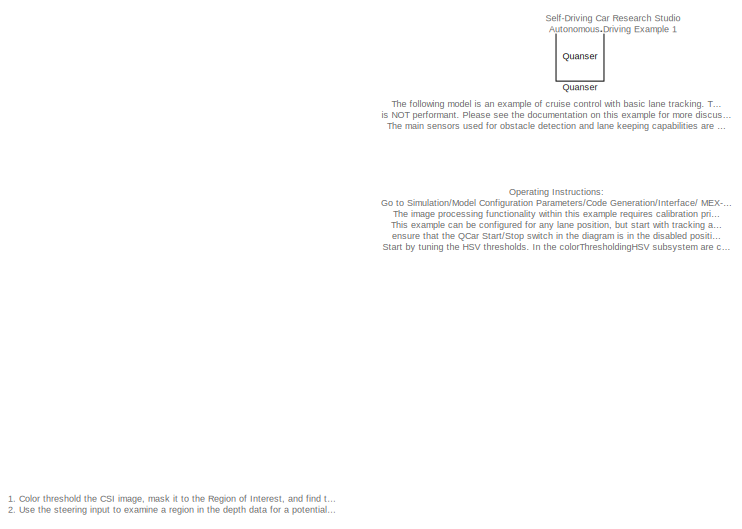
[diagram: root canvas - part 1/4, top left region]
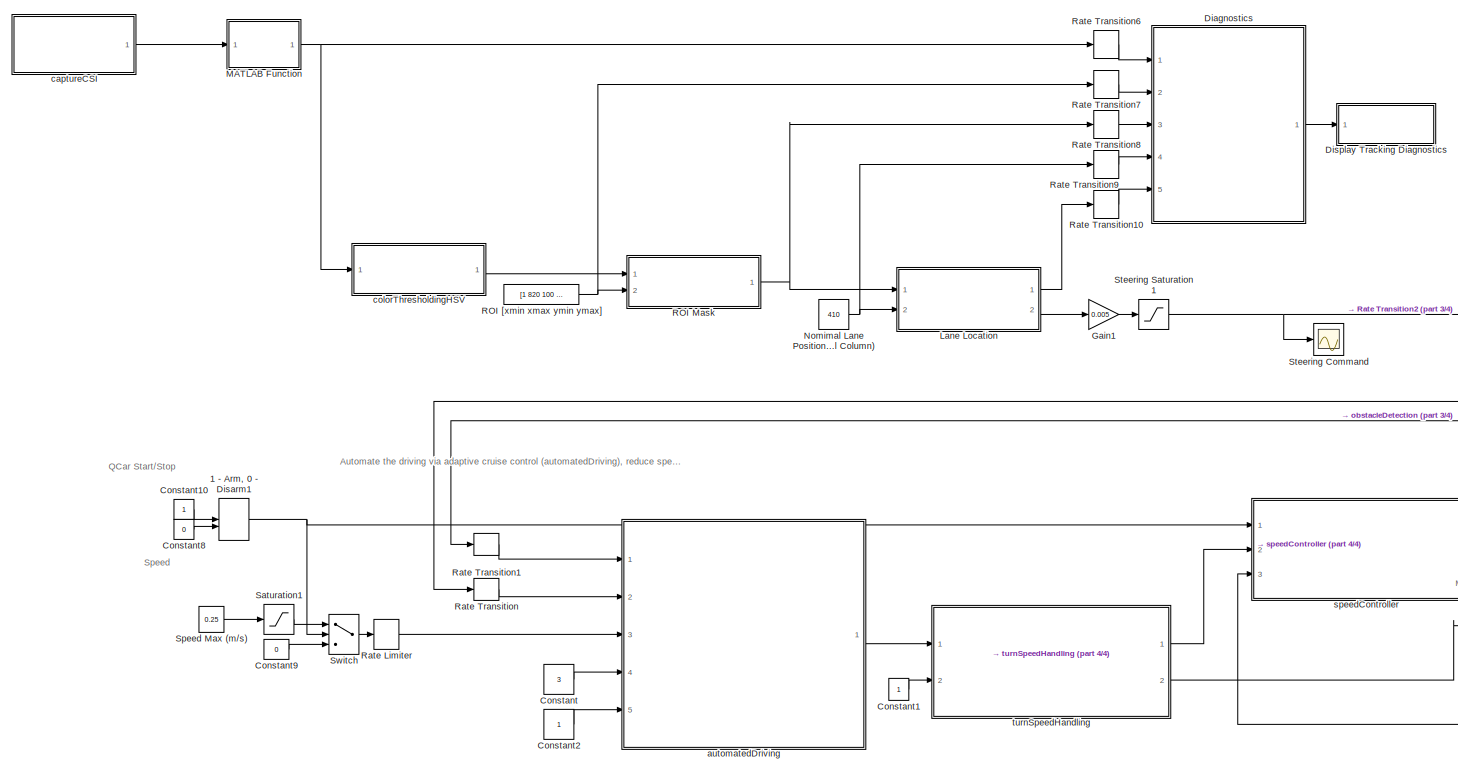
[diagram: root canvas - part 2/4, bottom left region]
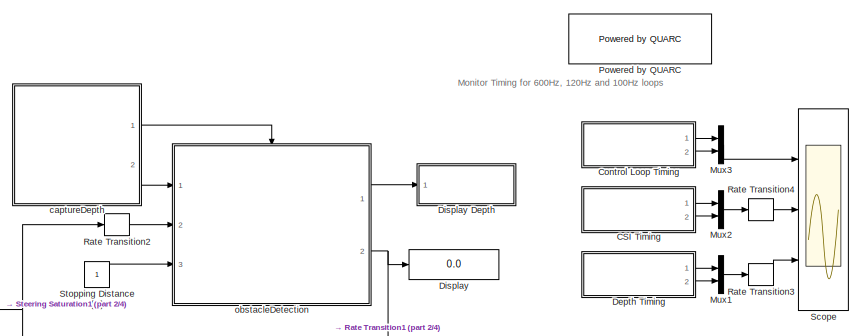
[diagram: root canvas - part 3/4, middle right region]
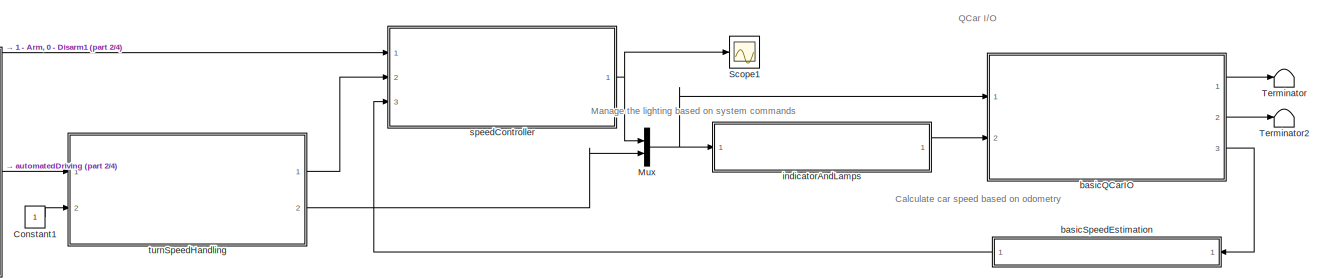
[diagram: root canvas - part 4/4, bottom center region]
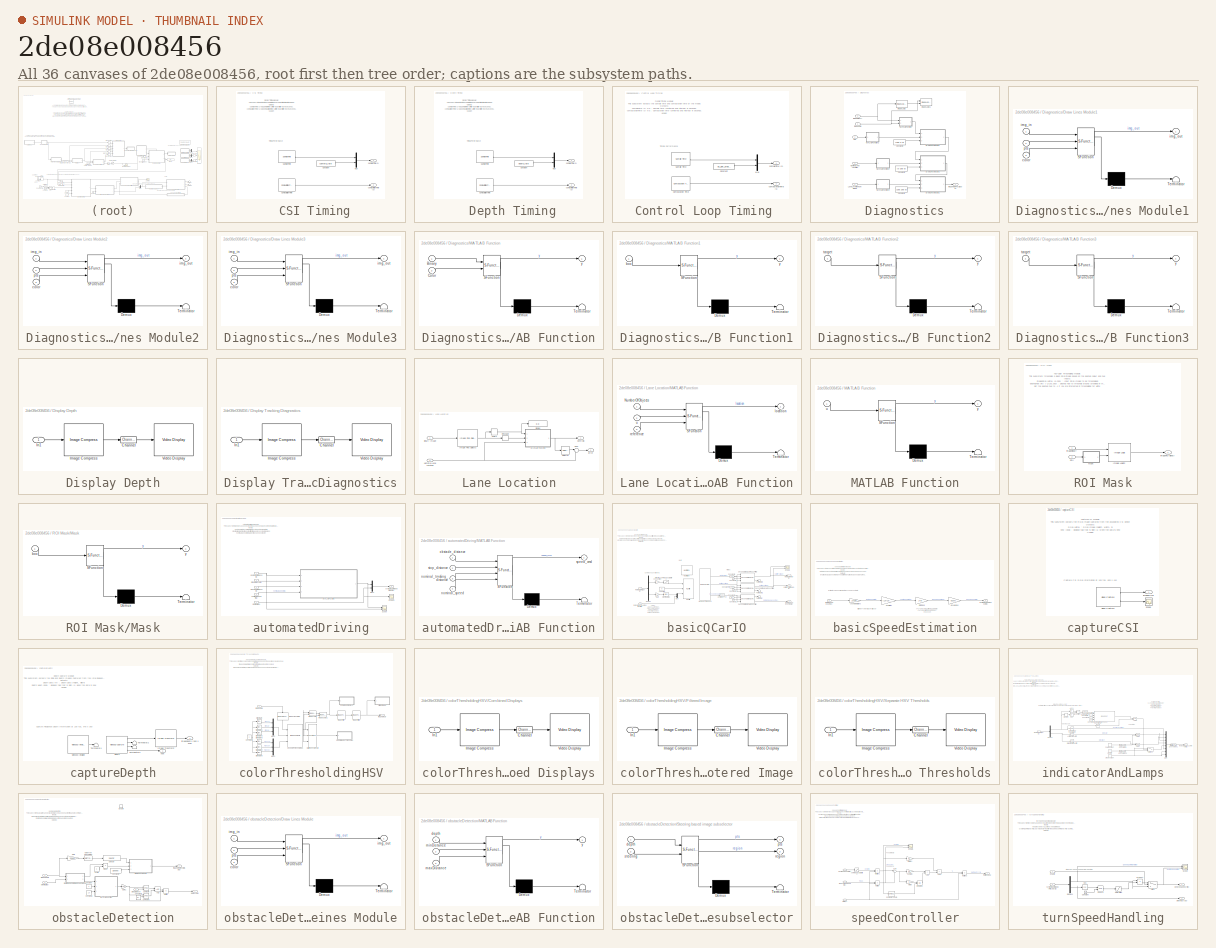
[diagram: thumbnail index - all 36 canvases of the model, root first then tree order]
MODEL slx_2de08e008456
KIND model
CONFIG AbsTol = auto
CONFIG EnableMultiTasking = on
CONFIG FixedStep = 1/120
CONFIG MaxStep = auto
CONFIG MinStep = auto
CONFIG RelTol = 1e-3
CONFIG SampleTimeConstraint = Unconstrained
CONFIG Solver = ode2
CONFIG SolverName = ode2
CONFIG StartTime = 0.0
CONFIG StopTime = inf
WORKSPACE source: MAT-file member
WORKSPACE MCOS: class17 (value not decoded)
BLOCK [SubSystem]  CSI Timing
  Ports = [0, 2]
BLOCK [Reference]  CSI Timing/Computation Time  REF=quarc_library/Sources/Time/Computation Time
  Ports = [0, 1]
  SourceBlock = quarc_library/Sources/Time/Computation Time
  SourceProductName = QUARC Targets
  SourceType = Computation Time
BLOCK [Constant]  CSI Timing/Constant
  SampleTime = camera_rate
  Value = camera_rate
BLOCK [Mux]  CSI Timing/Mux
  DisplayOption = bar
  Inputs = 2
  Ports = [2, 1]
BLOCK [Reference]  CSI Timing/Sample Time  REF=quarc_library/Sources/Time/Sample Time
  Ports = [0, 1]
  Priority = -99
  SourceBlock = quarc_library/Sources/Time/Sample Time
  SourceProductName = QUARC Targets
  SourceType = Sample Time
BLOCK [Outport]  CSI Timing/computationTime (s)
  Port = 2
  VectorParamsAs1DForOutWhenUnconnected = off
BLOCK [Outport]  CSI Timing/sampleTime (s)
  VectorParamsAs1DForOutWhenUnconnected = off
BLOCK [SubSystem]  Depth Timing
  Ports = [0, 2]
BLOCK [Reference]  Depth Timing/Computation Time  REF=quarc_library/Sources/Time/Computation Time
  Ports = [0, 1]
  SourceBlock = quarc_library/Sources/Time/Computation Time
  SourceProductName = QUARC Targets
  SourceType = Computation Time
BLOCK [Constant]  Depth Timing/Constant
  SampleTime = depth_rate
  Value = depth_rate
BLOCK [Mux]  Depth Timing/Mux
  DisplayOption = bar
  Inputs = 2
  Ports = [2, 1]
BLOCK [Reference]  Depth Timing/Sample Time  REF=quarc_library/Sources/Time/Sample Time
  Ports = [0, 1]
  Priority = -99
  SourceBlock = quarc_library/Sources/Time/Sample Time
  SourceProductName = QUARC Targets
  SourceType = Sample Time
BLOCK [Outport]  Depth Timing/computationTime (s)
  Port = 2
  VectorParamsAs1DForOutWhenUnconnected = off
BLOCK [Outport]  Depth Timing/sampleTime (s)
  VectorParamsAs1DForOutWhenUnconnected = off
BLOCK [ManualSwitch] 1 - Arm, 0 - Disarm1
  CurrentSetting = 0
BLOCK [Constant] Constant
  Value = 3
BLOCK [Constant] Constant1
BLOCK [Constant] Constant10
BLOCK [Constant] Constant2
BLOCK [Constant] Constant8
  Value = 0
BLOCK [Constant] Constant9
  Value = 0
BLOCK [SubSystem] Control Loop Timing 
  Ports = [0, 2]
BLOCK [Reference] Control Loop Timing /Computation Time  REF=quarc_library/Sources/Time/Computation Time
  Ports = [0, 1]
  SourceBlock = quarc_library/Sources/Time/Computation Time
  SourceProductName = QUARC Targets
  SourceType = Computation Time
BLOCK [Constant] Control Loop Timing /Constant
  SampleTime = -1
  Value = qc_get_step_size
BLOCK [Mux] Control Loop Timing /Mux
  DisplayOption = bar
  Inputs = 2
  Ports = [2, 1]
BLOCK [Reference] Control Loop Timing /Sample Time  REF=quarc_library/Sources/Time/Sample Time
  Ports = [0, 1]
  Priority = -99
  SourceBlock = quarc_library/Sources/Time/Sample Time
  SourceProductName = QUARC Targets
  SourceType = Sample Time
BLOCK [Outport] Control Loop Timing /computationTime (s)
  Port = 2
  VectorParamsAs1DForOutWhenUnconnected = off
BLOCK [Outport] Control Loop Timing /sampleTime (s)
  VectorParamsAs1DForOutWhenUnconnected = off
BLOCK [SubSystem] Diagnostics
  Ports = [5, 1]
BLOCK [Constant] Diagnostics/Constant2
  Value = [255 0 0]
BLOCK [Constant] Diagnostics/Constant3
  Value = [0 255 0]
BLOCK [Constant] Diagnostics/Constant4
  Value = [255 255 0]
BLOCK [SubSystem] Diagnostics/Draw Lines Module1
  ErrorFcn = Stateflow.Translate.translate
  PermitHierarchicalResolution = ExplicitOnly
  Ports = [3, 1]
  SFBlockType = MATLAB Function
  TreatAsAtomicUnit = on
BLOCK [Demux] Diagnostics/Draw Lines Module1/ Demux 
  Outputs = 1
  Ports = [1, 1]
BLOCK [S-Function] Diagnostics/Draw Lines Module1/ SFunction 
  EnableBusSupport = on
  FunctionName = sf_sfun
  PortCounts = [3 2]
  Ports = [3, 2]
  SFcnIsStateOwnerBlock = off
  SFunctionDeploymentMode = off
  Tag = Stateflow S-Function Autonomous_Driving_Car_Example1_r2018b 15
BLOCK [Terminator] Diagnostics/Draw Lines Module1/ Terminator 
BLOCK [Inport] Diagnostics/Draw Lines Module1/color
  Port = 3
BLOCK [Inport] Diagnostics/Draw Lines Module1/img_in
BLOCK [Outport] Diagnostics/Draw Lines Module1/img_out
  VectorParamsAs1DForOutWhenUnconnected = off
BLOCK [Inport] Diagnostics/Draw Lines Module1/pts
  Port = 2
BLOCK [SubSystem] Diagnostics/Draw Lines Module2
  ErrorFcn = Stateflow.Translate.translate
  PermitHierarchicalResolution = ExplicitOnly
  Ports = [3, 1]
  SFBlockType = MATLAB Function
  TreatAsAtomicUnit = on
BLOCK [Demux] Diagnostics/Draw Lines Module2/ Demux 
  Outputs = 1
  Ports = [1, 1]
BLOCK [S-Function] Diagnostics/Draw Lines Module2/ SFunction 
  EnableBusSupport = on
  FunctionName = sf_sfun
  PortCounts = [3 2]
  Ports = [3, 2]
  SFcnIsStateOwnerBlock = off
  SFunctionDeploymentMode = off
  Tag = Stateflow S-Function Autonomous_Driving_Car_Example1_r2018b 21
BLOCK [Terminator] Diagnostics/Draw Lines Module2/ Terminator 
BLOCK [Inport] Diagnostics/Draw Lines Module2/color
  Port = 3
BLOCK [Inport] Diagnostics/Draw Lines Module2/img_in
BLOCK [Outport] Diagnostics/Draw Lines Module2/img_out
  VectorParamsAs1DForOutWhenUnconnected = off
BLOCK [Inport] Diagnostics/Draw Lines Module2/pts
  Port = 2
BLOCK [SubSystem] Diagnostics/Draw Lines Module3
  ErrorFcn = Stateflow.Translate.translate
  PermitHierarchicalResolution = ExplicitOnly
  Ports = [3, 1]
  SFBlockType = MATLAB Function
  TreatAsAtomicUnit = on
BLOCK [Demux] Diagnostics/Draw Lines Module3/ Demux 
  Outputs = 1
  Ports = [1, 1]
BLOCK [S-Function] Diagnostics/Draw Lines Module3/ SFunction 
  EnableBusSupport = on
  FunctionName = sf_sfun
  PortCounts = [3 2]
  Ports = [3, 2]
  SFcnIsStateOwnerBlock = off
  SFunctionDeploymentMode = off
  Tag = Stateflow S-Function Autonomous_Driving_Car_Example1_r2018b 16
BLOCK [Terminator] Diagnostics/Draw Lines Module3/ Terminator 
BLOCK [Inport] Diagnostics/Draw Lines Module3/color
  Port = 3
BLOCK [Inport] Diagnostics/Draw Lines Module3/img_in
BLOCK [Outport] Diagnostics/Draw Lines Module3/img_out
  VectorParamsAs1DForOutWhenUnconnected = off
BLOCK [Inport] Diagnostics/Draw Lines Module3/pts
  Port = 2
BLOCK [Reference] Diagnostics/Image Logic  REF=quarc_library/Image Processing/Generic/Image Logic
  AttributesFormatString = (%<algorithm>)
  Commented = on
  Ports = [1, 1]
  SourceBlock = quarc_library/Image Processing/Generic/Image Logic
  SourceProductName = QUARC Targets
  SourceType = Image Logic
BLOCK [Reference] Diagnostics/Image Logic1  REF=quarc_library/Image Processing/Generic/Image Logic
  AttributesFormatString = (%<algorithm>)
  Commented = on
  Ports = [2, 1]
  SourceBlock = quarc_library/Image Processing/Generic/Image Logic
  SourceProductName = QUARC Targets
  SourceType = Image Logic
BLOCK [Inport] Diagnostics/Lane Location from Image
  Port = 5
BLOCK [SubSystem] Diagnostics/MATLAB Function
  ErrorFcn = Stateflow.Translate.translate
  PermitHierarchicalResolution = ExplicitOnly
  Ports = [2, 1]
  SFBlockType = MATLAB Function
  TreatAsAtomicUnit = on
BLOCK [Demux] Diagnostics/MATLAB Function/ Demux 
  Outputs = 1
  Ports = [1, 1]
BLOCK [S-Function] Diagnostics/MATLAB Function/ SFunction 
  EnableBusSupport = on
  FunctionName = sf_sfun
  PortCounts = [2 2]
  Ports = [2, 2]
  SFcnIsStateOwnerBlock = off
  SFunctionDeploymentMode = off
  Tag = Stateflow S-Function Autonomous_Driving_Car_Example1_r2018b 14
BLOCK [Terminator] Diagnostics/MATLAB Function/ Terminator 
BLOCK [Inport] Diagnostics/MATLAB Function/Binary
BLOCK [Inport] Diagnostics/MATLAB Function/Color
  Port = 2
BLOCK [Outport] Diagnostics/MATLAB Function/y
  VectorParamsAs1DForOutWhenUnconnected = off
BLOCK [SubSystem] Diagnostics/MATLAB Function1
  ErrorFcn = Stateflow.Translate.translate
  PermitHierarchicalResolution = ExplicitOnly
  Ports = [1, 1]
  SFBlockType = MATLAB Function
  TreatAsAtomicUnit = on
BLOCK [Demux] Diagnostics/MATLAB Function1/ Demux 
  Outputs = 1
  Ports = [1, 1]
BLOCK [S-Function] Diagnostics/MATLAB Function1/ SFunction 
  EnableBusSupport = on
  FunctionName = sf_sfun
  PortCounts = [1 2]
  Ports = [1, 2]
  SFcnIsStateOwnerBlock = off
  SFunctionDeploymentMode = off
  Tag = Stateflow S-Function Autonomous_Driving_Car_Example1_r2018b 17
BLOCK [Terminator] Diagnostics/MATLAB Function1/ Terminator 
BLOCK [Inport] Diagnostics/MATLAB Function1/box
BLOCK [Outport] Diagnostics/MATLAB Function1/y
  VectorParamsAs1DForOutWhenUnconnected = off
BLOCK [SubSystem] Diagnostics/MATLAB Function2
  ErrorFcn = Stateflow.Translate.translate
  PermitHierarchicalResolution = ExplicitOnly
  Ports = [1, 1]
  SFBlockType = MATLAB Function
  TreatAsAtomicUnit = on
BLOCK [Demux] Diagnostics/MATLAB Function2/ Demux 
  Outputs = 1
  Ports = [1, 1]
BLOCK [S-Function] Diagnostics/MATLAB Function2/ SFunction 
  EnableBusSupport = on
  FunctionName = sf_sfun
  PortCounts = [1 2]
  Ports = [1, 2]
  SFcnIsStateOwnerBlock = off
  SFunctionDeploymentMode = off
  Tag = Stateflow S-Function Autonomous_Driving_Car_Example1_r2018b 13
BLOCK [Terminator] Diagnostics/MATLAB Function2/ Terminator 
BLOCK [Inport] Diagnostics/MATLAB Function2/target
BLOCK [Outport] Diagnostics/MATLAB Function2/y
  VectorParamsAs1DForOutWhenUnconnected = off
BLOCK [SubSystem] Diagnostics/MATLAB Function3
  ErrorFcn = Stateflow.Translate.translate
  PermitHierarchicalResolution = ExplicitOnly
  Ports = [1, 1]
  SFBlockType = MATLAB Function
  TreatAsAtomicUnit = on
BLOCK [Demux] Diagnostics/MATLAB Function3/ Demux 
  Outputs = 1
  Ports = [1, 1]
BLOCK [S-Function] Diagnostics/MATLAB Function3/ SFunction 
  EnableBusSupport = on
  FunctionName = sf_sfun
  PortCounts = [1 2]
  Ports = [1, 2]
  SFcnIsStateOwnerBlock = off
  SFunctionDeploymentMode = off
  Tag = Stateflow S-Function Autonomous_Driving_Car_Example1_r2018b 20
BLOCK [Terminator] Diagnostics/MATLAB Function3/ Terminator 
BLOCK [Inport] Diagnostics/MATLAB Function3/target
BLOCK [Outport] Diagnostics/MATLAB Function3/y
  VectorParamsAs1DForOutWhenUnconnected = off
BLOCK [Inport] Diagnostics/Nominal Lane Location
  Port = 4
BLOCK [Inport] Diagnostics/ROI
  Port = 2
BLOCK [Inport] Diagnostics/imageBinary
  Port = 3
BLOCK [Inport] Diagnostics/imageRGB
BLOCK [Outport] Diagnostics/imageRGBForDisplay
  VectorParamsAs1DForOutWhenUnconnected = off
BLOCK [Display] Display
  Decimation = 1
  Ports = [1]
BLOCK [SubSystem] Display Depth
  CopyFcn = set_param(gcbh, 'UserData', gcb);\nset_param(gcbh, 'LinkStatus', 'none');
  LoadFcn = set_param(gcbh, 'UserData', gcb);
  NameChangeFcn = video_display_show([get_param(gcbh, 'UserData'), '/Video Display'], 'rename', [gcb, '/Video Display']);\nvideo_display_show([gcb, '/Video Display'], 'add', gcb);\nset_param(gcbh, 'UserData', gcb);  <repeated x5 — deduplicated; at blocks: Display Depth, Display Tracking Diagnostics, Combined Displays, Filtered Image, Separate HSV Thresholds>
  OpenFcn = video_display_show([gcb, '/Video Display'], 'show', gcb);
  Ports = [1]
  PreDeleteFcn = video_display_show([gcb, '/Video Display'], 'delete');
  StartFcn = video_display_show([gcb, '/Video Display'], 'add', gcb);
  UndoDeleteFcn = set_param(gcbh, 'UserData', gcb);
BLOCK [Reference] Display Depth/Channel  REF=quarc_library/Signal Routing/Channel
  Ports = [1, 1]
  SourceBlock = quarc_library/Signal Routing/Channel
  SourceProductName = QUARC Targets
  SourceType = Channel
BLOCK [Reference] Display Depth/Image Compress  REF=quarc_library/Image Processing/Generic/Image Compress
  AttributesFormatString = (%<algorithm>)
  Ports = [1, 1]
  SourceBlock = quarc_library/Image Processing/Generic/Image Compress
  SourceProductName = QUARC Targets
  SourceType = Image Compress
BLOCK [Inport] Display Depth/In1
BLOCK [Reference] Display Depth/Video Display  REF=quarc_library/Multimedia/Video Display
  Ports = [1]
  SourceBlock = quarc_library/Multimedia/Video Display
  SourceProductName = QUARC Targets
  SourceType = Video Display
  Tag = Autonomous_Driving_Car_Example1_r2018b/Display Depth/Video Display
  UserDataPersistent = on
BLOCK [SubSystem] Display Tracking Diagnostics
  CopyFcn = set_param(gcbh, 'UserData', gcb);\nset_param(gcbh, 'LinkStatus', 'none');
  LoadFcn = set_param(gcbh, 'UserData', gcb);
  OpenFcn = video_display_show([gcb, '/Video Display'], 'show', gcb);
  Ports = [1]
  PreDeleteFcn = video_display_show([gcb, '/Video Display'], 'delete');
  StartFcn = video_display_show([gcb, '/Video Display'], 'add', gcb);
  UndoDeleteFcn = set_param(gcbh, 'UserData', gcb);
BLOCK [Reference] Display Tracking Diagnostics/Channel  REF=quarc_library/Signal Routing/Channel
  Ports = [1, 1]
  SourceBlock = quarc_library/Signal Routing/Channel
  SourceProductName = QUARC Targets
  SourceType = Channel
BLOCK [Reference] Display Tracking Diagnostics/Image Compress  REF=quarc_library/Image Processing/Generic/Image Compress
  AttributesFormatString = (%<algorithm>)
  Ports = [1, 1]
  SourceBlock = quarc_library/Image Processing/Generic/Image Compress
  SourceProductName = QUARC Targets
  SourceType = Image Compress
BLOCK [Inport] Display Tracking Diagnostics/In1
BLOCK [Reference] Display Tracking Diagnostics/Video Display  REF=quarc_library/Multimedia/Video Display
  Ports = [1]
  SourceBlock = quarc_library/Multimedia/Video Display
  SourceProductName = QUARC Targets
  SourceType = Video Display
  Tag = Autonomous_Driving_Car_Example1_r2018b/Display Tracking Diagnostics/Video Display
  UserDataPersistent = on
BLOCK [Gain] Gain1
  Gain = 0.005
BLOCK [SubSystem] Lane Location
  Ports = [2, 2]
BLOCK [Inport] Lane Location/Binary Image
BLOCK [Outport] Lane Location/Centroid
  VectorParamsAs1DForOutWhenUnconnected = off
BLOCK [Display] Lane Location/Display
  Decimation = 1
  Ports = [1]
BLOCK [Outport] Lane Location/Error
  Port = 2
  VectorParamsAs1DForOutWhenUnconnected = off
BLOCK [Reference] Lane Location/Image Find Objects  REF=quarc_library/Image Processing/Generic/Image Find Objects
  Ports = [1, 5]
  SourceBlock = quarc_library/Image Processing/Generic/Image Find Objects
  SourceProductName = QUARC Targets
  SourceType = Image Find Objects
BLOCK [SubSystem] Lane Location/MATLAB Function
  ErrorFcn = Stateflow.Translate.translate
  PermitHierarchicalResolution = ExplicitOnly
  Ports = [3, 1]
  SFBlockType = MATLAB Function
  TreatAsAtomicUnit = on
BLOCK [Demux] Lane Location/MATLAB Function/ Demux 
  Outputs = 1
  Ports = [1, 1]
BLOCK [S-Function] Lane Location/MATLAB Function/ SFunction 
  EnableBusSupport = on
  FunctionName = sf_sfun
  PortCounts = [3 2]
  Ports = [3, 2]
  SFcnIsStateOwnerBlock = off
  SFunctionDeploymentMode = off
  Tag = Stateflow S-Function Autonomous_Driving_Car_Example1_r2018b 19
BLOCK [Terminator] Lane Location/MATLAB Function/ Terminator 
BLOCK [Inport] Lane Location/MATLAB Function/NumberOfObjects
BLOCK [Outport] Lane Location/MATLAB Function/location
  VectorParamsAs1DForOutWhenUnconnected = off
BLOCK [Inport] Lane Location/MATLAB Function/reference
  Port = 3
BLOCK [Inport] Lane Location/MATLAB Function/u
  Port = 2
BLOCK [Inport] Lane Location/Nomimal Lane Location
  Port = 2
BLOCK [Reshape] Lane Location/Reshape
  Ports = [1, 1]
BLOCK [Selector] Lane Location/Selector
  IndexOptions = Index vector (dialog)
  Indices = [2]
  InputPortWidth = 2
  OutputSizes = 1
  Ports = [1, 1]
BLOCK [Sum] Lane Location/Sum
  Inputs = |-+
  Ports = [2, 1]
BLOCK [Width] Lane Location/Width
BLOCK [SubSystem] MATLAB Function
  ErrorFcn = Stateflow.Translate.translate
  PermitHierarchicalResolution = ExplicitOnly
  Ports = [1, 1]
  SFBlockType = MATLAB Function
  TreatAsAtomicUnit = on
BLOCK [Demux] MATLAB Function/ Demux 
  Outputs = 1
  Ports = [1, 1]
BLOCK [S-Function] MATLAB Function/ SFunction 
  EnableBusSupport = on
  FunctionName = sf_sfun
  PortCounts = [1 2]
  Ports = [1, 2]
  SFcnIsStateOwnerBlock = off
  SFunctionDeploymentMode = off
  Tag = Stateflow S-Function Autonomous_Driving_Car_Example1_r2018b 2
BLOCK [Terminator] MATLAB Function/ Terminator 
BLOCK [Inport] MATLAB Function/u
BLOCK [Outport] MATLAB Function/y
  VectorParamsAs1DForOutWhenUnconnected = off
BLOCK [Mux] Mux
  DisplayOption = bar
  Inputs = 2
  Ports = [2, 1]
BLOCK [Mux] Mux1
  DisplayOption = bar
  Inputs = 2
  Ports = [2, 1]
BLOCK [Mux] Mux2
  DisplayOption = bar
  Inputs = 2
  Ports = [2, 1]
BLOCK [Mux] Mux3
  DisplayOption = bar
  Inputs = 2
  Ports = [2, 1]
BLOCK [Constant] Nomimal Lane Position (Pixel Column)
  OutDataTypeStr = Inherit: Inherit via back propagation
  Value = 410
BLOCK [Reference] Powered by QUARC  REF=quarc_library/Logos/Powered by QUARC
  Ports = []
  SourceBlock = quarc_library/Logos/Powered by QUARC
  SourceProductName = QUARC Targets
  SourceType = Powered by QUARC
BLOCK [Reference] Quanser  REF=quarc_library/Logos/Quanser
  Ports = []
  SourceBlock = quarc_library/Logos/Quanser
  SourceProductName = QUARC Targets
  SourceType = Powered by Quanser
BLOCK [SubSystem] ROI Mask
  Ports = [2, 1]
BLOCK [Reference] ROI Mask/Image Logic2  REF=quarc_library/Image Processing/Generic/Image Logic
  AttributesFormatString = (%<algorithm>)
  Ports = [2, 1]
  SourceBlock = quarc_library/Image Processing/Generic/Image Logic
  SourceProductName = QUARC Targets
  SourceType = Image Logic
BLOCK [SubSystem] ROI Mask/Mask
  ErrorFcn = Stateflow.Translate.translate
  PermitHierarchicalResolution = ExplicitOnly
  Ports = [1, 1]
  SFBlockType = MATLAB Function
  TreatAsAtomicUnit = on
BLOCK [Demux] ROI Mask/Mask/ Demux 
  Outputs = 1
  Ports = [1, 1]
BLOCK [S-Function] ROI Mask/Mask/ SFunction 
  EnableBusSupport = on
  FunctionName = sf_sfun
  PortCounts = [1 2]
  Ports = [1, 2]
  SFcnIsStateOwnerBlock = off
  SFunctionDeploymentMode = off
  Tag = Stateflow S-Function Autonomous_Driving_Car_Example1_r2018b 18
BLOCK [Terminator] ROI Mask/Mask/ Terminator 
BLOCK [Inport] ROI Mask/Mask/box
BLOCK [Outport] ROI Mask/Mask/y
  VectorParamsAs1DForOutWhenUnconnected = off
BLOCK [Inport] ROI Mask/ROI
  Port = 2
BLOCK [Inport] ROI Mask/imageBinary
BLOCK [Outport] ROI Mask/imageROIBinary
  VectorParamsAs1DForOutWhenUnconnected = off
BLOCK [Constant] ROI [xmin xmax ymin ymax]
  Value = [1 820 100 180]
BLOCK [RateLimiter] Rate Limiter
  FallingSlewLimit = -Inf
  SampleTimeMode = inherited
BLOCK [RateTransition] Rate Transition
BLOCK [RateTransition] Rate Transition1
BLOCK [RateTransition] Rate Transition10
  OutPortSampleTime = 0.1
BLOCK [RateTransition] Rate Transition2
  Deterministic = off
BLOCK [RateTransition] Rate Transition3
BLOCK [RateTransition] Rate Transition4
BLOCK [RateTransition] Rate Transition6
  OutPortSampleTime = 0.1
BLOCK [RateTransition] Rate Transition7
  OutPortSampleTime = 0.1
BLOCK [RateTransition] Rate Transition8
  OutPortSampleTime = 0.1
BLOCK [RateTransition] Rate Transition9
  OutPortSampleTime = 0.1
BLOCK [Saturate] Saturation1
  LowerLimit = 0
  UpperLimit = 1
BLOCK [Scope] Scope
  Floating = off
  NumInputPorts = 3
  Ports = [3]
  ScopeSpecificationString = Simulink.scopes.TimeScopeBlockCfg('CurrentConfiguration', extmgr.ConfigurationSet(extmgr.Configuration('Core','General UI',true),extmgr.Configuration('Core','Source UI',true),extmgr.Configuration('Sources','WiredSimulink',true,'DataLoggingVariableName','ScopeData1'),extmgr.Configuration('Visuals','Time Domain',true,'SerializedDisplays',{struct('MinYLimReal','-0.14316','MaxYLimReal','1.28841','YLab...<+2785ch>
BLOCK [Scope] Scope1
  Floating = off
  NumInputPorts = 1
  Ports = [1]
  ScopeSpecificationString = Simulink.scopes.TimeScopeBlockCfg('CurrentConfiguration', extmgr.ConfigurationSet(extmgr.Configuration('Core','General UI',true),extmgr.Configuration('Core','Source UI',true),extmgr.Configuration('Sources','WiredSimulink',true,'DataLoggingVariableName','ScopeData3'),extmgr.Configuration('Visuals','Time Domain',true,'SerializedDisplays',{struct('MinYLimReal','-0.05625','MaxYLimReal','0.50625','YLab...<+1476ch>
BLOCK [Constant] Speed Max (m//s)
  Value = 0.25
BLOCK [Scope] Steering Command
  Floating = off
  NumInputPorts = 1
  Ports = [1]
  ScopeSpecificationString = Simulink.scopes.TimeScopeBlockCfg('CurrentConfiguration', extmgr.ConfigurationSet(extmgr.Configuration('Core','General UI',true),extmgr.Configuration('Core','Source UI',true),extmgr.Configuration('Sources','WiredSimulink',true,'DataLoggingVariableName','ScopeData2'),extmgr.Configuration('Visuals','Time Domain',true,'SerializedDisplays',{struct('MinYLimReal','-0.625','MaxYLimReal','0.625','YLabelRe...<+1394ch>
BLOCK [Saturate] Steering Saturation1
BLOCK [Constant] Stopping Distance (m)
BLOCK [Switch] Switch
  Criteria = u2 > Threshold
  InputSameDT = off
  SaturateOnIntegerOverflow = off
BLOCK [Terminator] Terminator
BLOCK [Terminator] Terminator2
BLOCK [SubSystem] automatedDriving
  Ports = [5, 1]
BLOCK [SubSystem] automatedDriving/MATLAB Function
  ErrorFcn = Stateflow.Translate.translate
  PermitHierarchicalResolution = ExplicitOnly
  Ports = [4, 1]
  SFBlockType = MATLAB Function
  TreatAsAtomicUnit = on
BLOCK [Demux] automatedDriving/MATLAB Function/ Demux 
  Outputs = 1
  Ports = [1, 1]
BLOCK [S-Function] automatedDriving/MATLAB Function/ SFunction 
  EnableBusSupport = on
  FunctionName = sf_sfun
  PortCounts = [4 2]
  Ports = [4, 2]
  SFcnIsStateOwnerBlock = off
  SFunctionDeploymentMode = off
  Tag = Stateflow S-Function Autonomous_Driving_Car_Example1_r2018b 10
BLOCK [Terminator] automatedDriving/MATLAB Function/ Terminator 
BLOCK [Inport] automatedDriving/MATLAB Function/nominal_speed
  Port = 4
BLOCK [Inport] automatedDriving/MATLAB Function/nominal_tracking_distance
  Port = 3
BLOCK [Inport] automatedDriving/MATLAB Function/obstacle_distance
BLOCK [Outport] automatedDriving/MATLAB Function/speed_cmd
  VectorParamsAs1DForOutWhenUnconnected = off
BLOCK [Inport] automatedDriving/MATLAB Function/stop_distance
  Port = 2
BLOCK [Mux] automatedDriving/Mux1
  DisplayOption = bar
  Inputs = 2
  Ports = [2, 1]
BLOCK [Scope] automatedDriving/Scope
  Floating = off
  NumInputPorts = 2
  Ports = [2]
  ScopeSpecificationString = Simulink.scopes.TimeScopeBlockCfg('CurrentConfiguration', extmgr.ConfigurationSet(extmgr.Configuration('Core','General UI',true),extmgr.Configuration('Core','Source UI',true),extmgr.Configuration('Sources','WiredSimulink',true,'DataLoggingVariableName','ScopeData1'),extmgr.Configuration('Visuals','Time Domain',true,'SerializedDisplays',{struct('MinYLimReal','-1.05071','MaxYLimReal','9.45641','YLab...<+1473ch>
BLOCK [Scope] automatedDriving/Scope2
  Floating = off
  NumInputPorts = 1
  Ports = [1]
  ScopeSpecificationString = Simulink.scopes.TimeScopeBlockCfg('CurrentConfiguration', extmgr.ConfigurationSet(extmgr.Configuration('Core','General UI',true),extmgr.Configuration('Core','Source UI',true),extmgr.Configuration('Sources','WiredSimulink',true,'DataLoggingVariableName','ScopeData2'),extmgr.Configuration('Visuals','Time Domain',true,'SerializedDisplays',{struct('MinYLimReal','-0.0625','MaxYLimReal','0.5625','YLabel...<+1440ch>
BLOCK [Inport] automatedDriving/Stop Distance (m)
  Port = 4
BLOCK [Inport] automatedDriving/Tracking Distance (m)
  Port = 5
BLOCK [Inport] automatedDriving/nominalSpeed (m//s)
  Port = 3
BLOCK [Inport] automatedDriving/obstacleDistance (m)
BLOCK [Inport] automatedDriving/steering (rad)
  Port = 2
BLOCK [Outport] automatedDriving/systemCommand (m//s, rad) [2]
  VectorParamsAs1DForOutWhenUnconnected = off
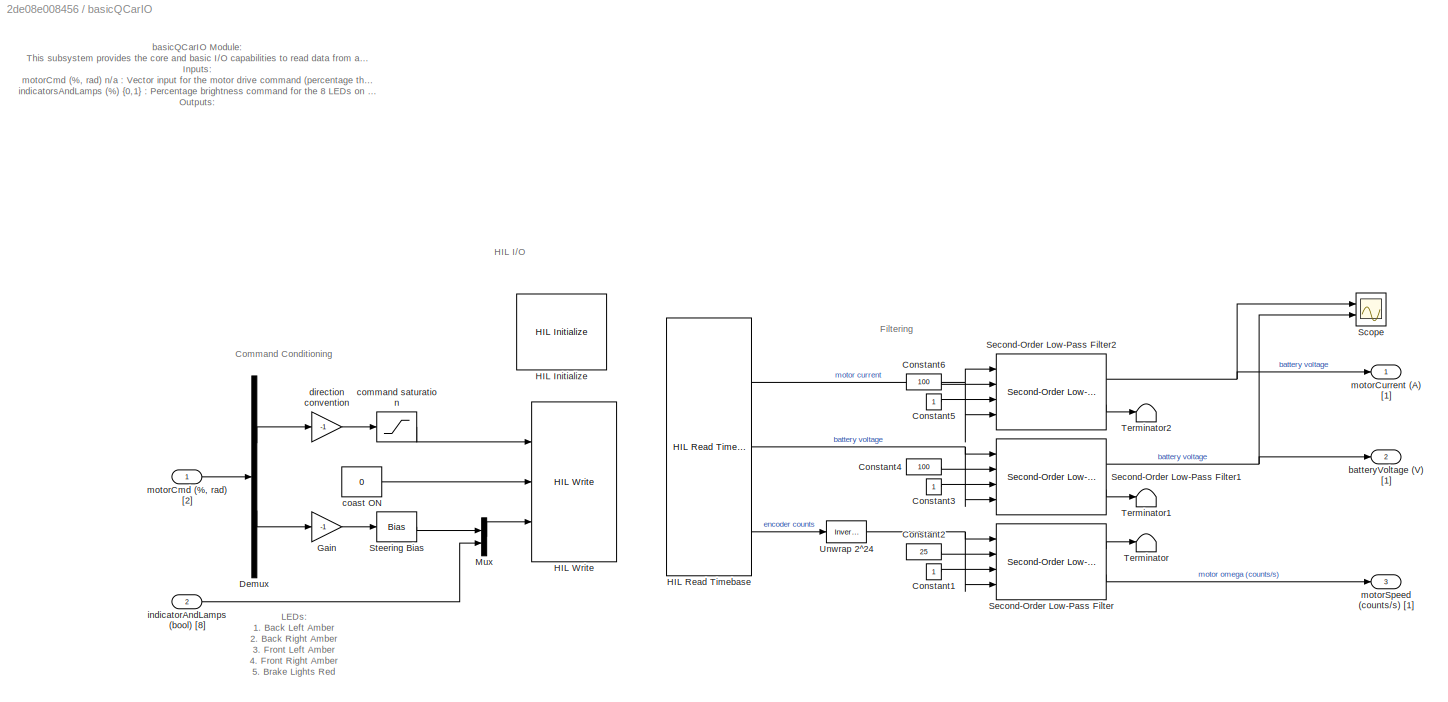
BLOCK [SubSystem] basicQCarIO
  Ports = [2, 3]
BLOCK [Constant] basicQCarIO/Constant1
BLOCK [Constant] basicQCarIO/Constant2
  Value = 25
BLOCK [Constant] basicQCarIO/Constant3
BLOCK [Constant] basicQCarIO/Constant4
  Value = 100
BLOCK [Constant] basicQCarIO/Constant5
BLOCK [Constant] basicQCarIO/Constant6
  Value = 100
BLOCK [Demux] basicQCarIO/Demux
  Outputs = 2
  Ports = [1, 2]
BLOCK [Gain] basicQCarIO/Gain
  Gain = -1
BLOCK [Reference] basicQCarIO/HIL Initialize  REF=quarc_library/Data Acquisition/Generic/Configuration/HIL Initialize
  AttributesFormatString = %<object_name> (%<board_type>-%<board_number>)
  Ports = []
  SourceBlock = quarc_library/Data Acquisition/Generic/Configuration/HIL Initialize
  SourceProductName = QUARC Targets
  SourceType = HIL Initialize
  UserDataPersistent = on
BLOCK [Reference] basicQCarIO/HIL Read Timebase  REF=quarc_library/Data Acquisition/Generic/Timebases/HIL Read
Timebase
  AttributesFormatString = (%<object_name>)
  Ports = [0, 3]
  SourceBlock = quarc_library/Data Acquisition/Generic/Timebases/HIL Read\nTimebase
  SourceProductName = QUARC Targets
  SourceType = HIL Read Timebase
  UserDataPersistent = on
BLOCK [Reference] basicQCarIO/HIL Write  REF=quarc_library/Data Acquisition/Generic/Immediate I//O/HIL Write
  AttributesFormatString = (%<object_name>)
  Ports = [3]
  SourceBlock = quarc_library/Data Acquisition/Generic/Immediate I//O/HIL Write
  SourceProductName = QUARC Targets
  SourceType = HIL Write
  UserDataPersistent = on
BLOCK [Mux] basicQCarIO/Mux
  DisplayOption = bar
  Inputs = 2
  Ports = [2, 1]
BLOCK [Scope] basicQCarIO/Scope
  Floating = off
  NumInputPorts = 2
  Ports = [2]
  ScopeSpecificationString = Simulink.scopes.TimeScopeBlockCfg('CurrentConfiguration', extmgr.ConfigurationSet(extmgr.Configuration('Core','General UI',true),extmgr.Configuration('Core','Source UI',true),extmgr.Configuration('Sources','WiredSimulink',true,'DataLoggingVariableName','ScopeData4'),extmgr.Configuration('Visuals','Time Domain',true,'SerializedDisplays',{struct('MinYLimReal','-1.03564','MaxYLimReal','12.37845','YLa...<+1450ch>
BLOCK [Reference] basicQCarIO/Second-Order Low-Pass Filter  REF=quarc_library/Continuous/Second-Order
Low-Pass Filter
  Ports = [4, 2]
  SourceBlock = quarc_library/Continuous/Second-Order\nLow-Pass Filter
  SourceProductName = QUARC Targets
  SourceType = Second-Order Low-Pass Filter
BLOCK [Reference] basicQCarIO/Second-Order Low-Pass Filter1  REF=quarc_library/Continuous/Second-Order
Low-Pass Filter
  Ports = [4, 2]
  SourceBlock = quarc_library/Continuous/Second-Order\nLow-Pass Filter
  SourceProductName = QUARC Targets
  SourceType = Second-Order Low-Pass Filter
BLOCK [Reference] basicQCarIO/Second-Order Low-Pass Filter2  REF=quarc_library/Continuous/Second-Order
Low-Pass Filter
  Ports = [4, 2]
  SourceBlock = quarc_library/Continuous/Second-Order\nLow-Pass Filter
  SourceProductName = QUARC Targets
  SourceType = Second-Order Low-Pass Filter
BLOCK [Bias] basicQCarIO/Steering Bias
  Bias = 0.0
  SaturateOnIntegerOverflow = off
BLOCK [Terminator] basicQCarIO/Terminator
BLOCK [Terminator] basicQCarIO/Terminator1
BLOCK [Terminator] basicQCarIO/Terminator2
BLOCK [Reference] basicQCarIO/Unwrap 2^24  REF=quarc_library/Discontinuities/Inverse
Modulus
  Ports = [1, 1]
  SourceBlock = quarc_library/Discontinuities/Inverse\nModulus
  SourceProductName = QUARC Targets
  SourceType = Inverse Modulus
BLOCK [Outport] basicQCarIO/batteryVoltage (V) [1]
  Port = 2
  VectorParamsAs1DForOutWhenUnconnected = off
BLOCK [Constant] basicQCarIO/coast ON
  Value = 0
BLOCK [Saturate] basicQCarIO/command saturation
  LowerLimit = -0.25
  UpperLimit = 0.25
BLOCK [Gain] basicQCarIO/direction convention
  Gain = -1
BLOCK [Inport] basicQCarIO/indicatorAndLamps (bool) [8]
  Port = 2
BLOCK [Inport] basicQCarIO/motorCmd (%, rad) [2]
BLOCK [Outport] basicQCarIO/motorCurrent (A) [1]
  VectorParamsAs1DForOutWhenUnconnected = off
BLOCK [Outport] basicQCarIO/motorSpeed (counts//s) [1]
  Port = 3
  VectorParamsAs1DForOutWhenUnconnected = off
BLOCK [SubSystem] basicSpeedEstimation
  Ports = [1, 1]
BLOCK [Gain] basicSpeedEstimation/counts to rotations
  Gain = 1/720/4
BLOCK [Gain] basicSpeedEstimation/gear ratios
  Gain = (13*19)/(70*37)
BLOCK [Outport] basicSpeedEstimation/longitudinalCarSpeed (m//s)
  VectorParamsAs1DForOutWhenUnconnected = off
BLOCK [Inport] basicSpeedEstimation/motorSpeed (counts//s)
BLOCK [Gain] basicSpeedEstimation/rot//s to rad//s
  Gain = 2*pi
BLOCK [Gain] basicSpeedEstimation/wheel radius
  Gain = 0.0342
BLOCK [SubSystem] captureCSI
  Ports = [0, 1]
BLOCK [Scope] captureCSI/Scope
  Floating = off
  NumInputPorts = 1
  Ports = [1]
  ScopeSpecificationString = Simulink.scopes.TimeScopeBlockCfg('CurrentConfiguration', extmgr.ConfigurationSet(extmgr.Configuration('Core','General UI',true),extmgr.Configuration('Core','Source UI',true),extmgr.Configuration('Sources','WiredSimulink',true,'DataLoggingVariableName','ScopeData3'),extmgr.Configuration('Visuals','Time Domain',true,'SerializedDisplays',{struct('MinYLimReal','-0.125','MaxYLimReal','1.125','YLabelRe...<+1433ch>
BLOCK [Reference] captureCSI/Video Capture  REF=quarc_library/Multimedia/Video Capture
  Ports = [0, 2]
  SourceBlock = quarc_library/Multimedia/Video Capture
  SourceProductName = QUARC Targets
  SourceType = Video Capture
BLOCK [Outport] captureCSI/imageRGB
  VectorParamsAs1DForOutWhenUnconnected = off
BLOCK [SubSystem] captureDepth
  Ports = [0, 2]
BLOCK [Reference] captureDepth/Depth  REF=quarc_library/Multimedia/Video3D Capture
  Ports = [0, 4]
  SourceBlock = quarc_library/Multimedia/Video3D Capture
  SourceProductName = QUARC Targets
  SourceType = Video3D Capture
  UserDataPersistent = on
BLOCK [Reference] captureDepth/Image Transform  REF=quarc_library/Image Processing/Generic/Image Transform
  AttributesFormatString = (%<algorithm>)
  Ports = [1, 1]
  SourceBlock = quarc_library/Image Processing/Generic/Image Transform
  SourceProductName = QUARC Targets
  SourceType = Image Transform
BLOCK [Terminator] captureDepth/Terminator2
BLOCK [Terminator] captureDepth/Terminator3
BLOCK [Terminator] captureDepth/Terminator4
BLOCK [Reference] captureDepth/Video3D Initialize  REF=quarc_library/Multimedia/Video3D Initialize
  Ports = [0, 1]
  SourceBlock = quarc_library/Multimedia/Video3D Initialize
  SourceProductName = QUARC Targets
  SourceType = Video3D Initialize
BLOCK [Outport] captureDepth/imageDepth [360 x 640]
  Port = 2
  VectorParamsAs1DForOutWhenUnconnected = off
BLOCK [Outport] captureDepth/new
  VectorParamsAs1DForOutWhenUnconnected = off
BLOCK [SubSystem] colorThresholdingHSV
  Ports = [1, 1]
BLOCK [SubSystem] colorThresholdingHSV/Combined Displays
  Commented = on
  CopyFcn = set_param(gcbh, 'UserData', gcb);\nset_param(gcbh, 'LinkStatus', 'none');
  LoadFcn = set_param(gcbh, 'UserData', gcb);
  OpenFcn = video_display_show([gcb, '/Video Display'], 'show', gcb);
  Ports = [1]
  PreDeleteFcn = video_display_show([gcb, '/Video Display'], 'delete');
  StartFcn = video_display_show([gcb, '/Video Display'], 'add', gcb);
  UndoDeleteFcn = set_param(gcbh, 'UserData', gcb);
BLOCK [Reference] colorThresholdingHSV/Combined Displays/Channel  REF=quarc_library/Signal Routing/Channel
  Ports = [1, 1]
  SourceBlock = quarc_library/Signal Routing/Channel
  SourceProductName = QUARC Targets
  SourceType = Channel
BLOCK [Reference] colorThresholdingHSV/Combined Displays/Image Compress  REF=quarc_library/Image Processing/Generic/Image Compress
  AttributesFormatString = (%<algorithm>)
  Ports = [1, 1]
  SourceBlock = quarc_library/Image Processing/Generic/Image Compress
  SourceProductName = QUARC Targets
  SourceType = Image Compress
BLOCK [Inport] colorThresholdingHSV/Combined Displays/In1
BLOCK [Reference] colorThresholdingHSV/Combined Displays/Video Display  REF=quarc_library/Multimedia/Video Display
  Ports = [1]
  SourceBlock = quarc_library/Multimedia/Video Display
  SourceProductName = QUARC Targets
  SourceType = Video Display
  Tag = Autonomous_Driving_Car_Example1_r2018b/colorThresholdingHSV/Combined\n Displays/Video Display
  UserDataPersistent = on
BLOCK [Constant] colorThresholdingHSV/Constant6
BLOCK [SubSystem] colorThresholdingHSV/Filtered Image
  CopyFcn = set_param(gcbh, 'UserData', gcb);\nset_param(gcbh, 'LinkStatus', 'none');
  LoadFcn = set_param(gcbh, 'UserData', gcb);
  OpenFcn = video_display_show([gcb, '/Video Display'], 'show', gcb);
  Ports = [1]
  PreDeleteFcn = video_display_show([gcb, '/Video Display'], 'delete');
  StartFcn = video_display_show([gcb, '/Video Display'], 'add', gcb);
  UndoDeleteFcn = set_param(gcbh, 'UserData', gcb);
BLOCK [Reference] colorThresholdingHSV/Filtered Image/Channel  REF=quarc_library/Signal Routing/Channel
  Ports = [1, 1]
  SourceBlock = quarc_library/Signal Routing/Channel
  SourceProductName = QUARC Targets
  SourceType = Channel
BLOCK [Reference] colorThresholdingHSV/Filtered Image/Image Compress  REF=quarc_library/Image Processing/Generic/Image Compress
  AttributesFormatString = (%<algorithm>)
  Ports = [1, 1]
  SourceBlock = quarc_library/Image Processing/Generic/Image Compress
  SourceProductName = QUARC Targets
  SourceType = Image Compress
BLOCK [Inport] colorThresholdingHSV/Filtered Image/In1
BLOCK [Reference] colorThresholdingHSV/Filtered Image/Video Display  REF=quarc_library/Multimedia/Video Display
  Ports = [1]
  SourceBlock = quarc_library/Multimedia/Video Display
  SourceProductName = QUARC Targets
  SourceType = Video Display
  Tag = Autonomous_Driving_Car_Example1_r2018b/colorThresholdingHSV/Filtered Image/Video Display
  UserDataPersistent = on
BLOCK [Reference] colorThresholdingHSV/HSV Color Thresholding1  REF=quarc_library/Image Processing/Generic/Image Compare
  Ports = [3, 3]
  SourceBlock = quarc_library/Image Processing/Generic/Image Compare
  SourceProductName = QUARC Targets
  SourceType = Image Compare
BLOCK [Reference] colorThresholdingHSV/Image Filter  REF=quarc_library/Image Processing/Generic/Image Filter
  AttributesFormatString = (%<filter_type>)
  Ports = [1, 1]
  SourceBlock = quarc_library/Image Processing/Generic/Image Filter
  SourceProductName = QUARC Targets
  SourceType = Image Filter
BLOCK [Reference] colorThresholdingHSV/Image Filter1  REF=quarc_library/Image Processing/Generic/Image Filter
  AttributesFormatString = (%<filter_type>)
  Ports = [1, 1]
  SourceBlock = quarc_library/Image Processing/Generic/Image Filter
  SourceProductName = QUARC Targets
  SourceType = Image Filter
BLOCK [Reference] colorThresholdingHSV/Image Logic  REF=quarc_library/Image Processing/Generic/Image Logic
  AttributesFormatString = (%<algorithm>)
  Ports = [2, 1]
  SourceBlock = quarc_library/Image Processing/Generic/Image Logic
  SourceProductName = QUARC Targets
  SourceType = Image Logic
BLOCK [Reference] colorThresholdingHSV/Image Logic1  REF=quarc_library/Image Processing/Generic/Image Logic
  AttributesFormatString = (%<algorithm>)
  Ports = [2, 1]
  SourceBlock = quarc_library/Image Processing/Generic/Image Logic
  SourceProductName = QUARC Targets
  SourceType = Image Logic
BLOCK [Reference] colorThresholdingHSV/Image Transform1  REF=quarc_library/Image Processing/Generic/Image Transform
  AttributesFormatString = (%<algorithm>)
  Ports = [1, 1]
  SourceBlock = quarc_library/Image Processing/Generic/Image Transform
  SourceProductName = QUARC Targets
  SourceType = Image Transform
BLOCK [Concatenate] colorThresholdingHSV/Matrix Concatenate
  ConcatenateDimension = 2
  Mode = Multidimensional array
  NumInputs = 3
  Ports = [3, 1]
BLOCK [Mux] colorThresholdingHSV/Mux2
  DisplayOption = bar
  Inputs = 3
  Ports = [3, 1]
BLOCK [Mux] colorThresholdingHSV/Mux3
  DisplayOption = bar
  Inputs = 3
  Ports = [3, 1]
BLOCK [SubSystem] colorThresholdingHSV/Separate HSV Thresholds
  CopyFcn = set_param(gcbh, 'UserData', gcb);\nset_param(gcbh, 'LinkStatus', 'none');
  LoadFcn = set_param(gcbh, 'UserData', gcb);
  OpenFcn = video_display_show([gcb, '/Video Display'], 'show', gcb);
  Ports = [1]
  PreDeleteFcn = video_display_show([gcb, '/Video Display'], 'delete');
  StartFcn = video_display_show([gcb, '/Video Display'], 'add', gcb);
  UndoDeleteFcn = set_param(gcbh, 'UserData', gcb);
BLOCK [Reference] colorThresholdingHSV/Separate HSV Thresholds/Channel  REF=quarc_library/Signal Routing/Channel
  Ports = [1, 1]
  SourceBlock = quarc_library/Signal Routing/Channel
  SourceProductName = QUARC Targets
  SourceType = Channel
BLOCK [Reference] colorThresholdingHSV/Separate HSV Thresholds/Image Compress  REF=quarc_library/Image Processing/Generic/Image Compress
  AttributesFormatString = (%<algorithm>)
  Ports = [1, 1]
  SourceBlock = quarc_library/Image Processing/Generic/Image Compress
  SourceProductName = QUARC Targets
  SourceType = Image Compress
BLOCK [Inport] colorThresholdingHSV/Separate HSV Thresholds/In1
BLOCK [Reference] colorThresholdingHSV/Separate HSV Thresholds/Video Display  REF=quarc_library/Multimedia/Video Display
  Ports = [1]
  SourceBlock = quarc_library/Multimedia/Video Display
  SourceProductName = QUARC Targets
  SourceType = Video Display
  Tag = Autonomous_Driving_Car_Example1_r2018b/colorThresholdingHSV/Separate HSV Thresholds/Video Display
  UserDataPersistent = on
BLOCK [Reference] colorThresholdingHSV/Slider Gain  REF=simulink/Math
Operations/Slider
Gain
  Ports = [1, 1]
  SourceBlock = simulink/Math\nOperations/Slider\nGain
  SourceType = Slider Gain
BLOCK [Reference] colorThresholdingHSV/Slider Gain1  REF=simulink/Math
Operations/Slider
Gain
  Ports = [1, 1]
  SourceBlock = simulink/Math\nOperations/Slider\nGain
  SourceType = Slider Gain
BLOCK [Reference] colorThresholdingHSV/Slider Gain2  REF=simulink/Math
Operations/Slider
Gain
  Ports = [1, 1]
  SourceBlock = simulink/Math\nOperations/Slider\nGain
  SourceType = Slider Gain
BLOCK [Reference] colorThresholdingHSV/Slider Gain3  REF=simulink/Math
Operations/Slider
Gain
  Ports = [1, 1]
  SourceBlock = simulink/Math\nOperations/Slider\nGain
  SourceType = Slider Gain
BLOCK [Reference] colorThresholdingHSV/Slider Gain4  REF=simulink/Math
Operations/Slider
Gain
  Ports = [1, 1]
  SourceBlock = simulink/Math\nOperations/Slider\nGain
  SourceType = Slider Gain
BLOCK [Reference] colorThresholdingHSV/Slider Gain5  REF=simulink/Math
Operations/Slider
Gain
  Ports = [1, 1]
  SourceBlock = simulink/Math\nOperations/Slider\nGain
  SourceType = Slider Gain
BLOCK [Outport] colorThresholdingHSV/imageBinary
  VectorParamsAs1DForOutWhenUnconnected = off
BLOCK [Inport] colorThresholdingHSV/imageRGB
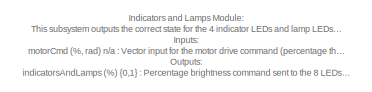
[diagram: indicatorAndLamps - part 1/2, top left region]
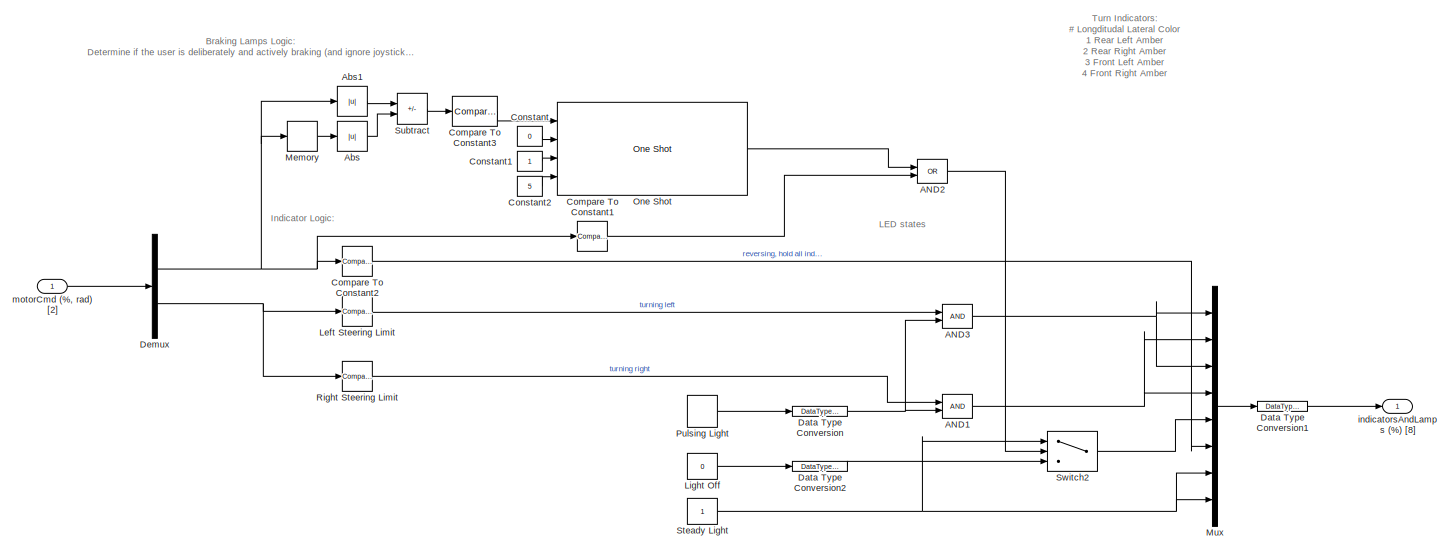
[diagram: indicatorAndLamps - part 2/2, full width, middle band]
BLOCK [SubSystem] indicatorAndLamps
  Ports = [1, 1]
BLOCK [Logic] indicatorAndLamps/AND1
  AllPortsSameDT = off
  IconShape = distinctive
  OutDataTypeStr = boolean
  Ports = [2, 1]
BLOCK [Logic] indicatorAndLamps/AND2
  AllPortsSameDT = off
  IconShape = distinctive
  Operator = OR
  OutDataTypeStr = boolean
  Ports = [2, 1]
BLOCK [Logic] indicatorAndLamps/AND3
  AllPortsSameDT = off
  IconShape = distinctive
  OutDataTypeStr = boolean
  Ports = [2, 1]
BLOCK [Abs] indicatorAndLamps/Abs
  SaturateOnIntegerOverflow = off
BLOCK [Abs] indicatorAndLamps/Abs1
  SaturateOnIntegerOverflow = off
BLOCK [Reference] indicatorAndLamps/Compare To Constant1  REF=simulink/Logic and Bit
Operations/Compare
To Constant
  Ports = [1, 1]
  SourceBlock = simulink/Logic and Bit\nOperations/Compare\nTo Constant
  SourceType = Compare To Constant
BLOCK [Reference] indicatorAndLamps/Compare To Constant2  REF=simulink/Logic and Bit
Operations/Compare
To Constant
  Ports = [1, 1]
  SourceBlock = simulink/Logic and Bit\nOperations/Compare\nTo Constant
  SourceType = Compare To Constant
BLOCK [Reference] indicatorAndLamps/Compare To Constant3  REF=simulink/Logic and Bit
Operations/Compare
To Constant
  Ports = [1, 1]
  SourceBlock = simulink/Logic and Bit\nOperations/Compare\nTo Constant
  SourceType = Compare To Constant
BLOCK [Constant] indicatorAndLamps/Constant
  Value = 0
BLOCK [Constant] indicatorAndLamps/Constant1
BLOCK [Constant] indicatorAndLamps/Constant2
  Value = 5
BLOCK [DataTypeConversion] indicatorAndLamps/Data Type Conversion
  RndMeth = Floor
  SaturateOnIntegerOverflow = off
BLOCK [DataTypeConversion] indicatorAndLamps/Data Type Conversion1
  RndMeth = Floor
  SaturateOnIntegerOverflow = off
BLOCK [DataTypeConversion] indicatorAndLamps/Data Type Conversion2
  RndMeth = Floor
  SaturateOnIntegerOverflow = off
BLOCK [Demux] indicatorAndLamps/Demux
  Outputs = 2
  Ports = [1, 2]
BLOCK [Reference] indicatorAndLamps/Left Steering Limit  REF=simulink/Logic and Bit
Operations/Compare
To Constant
  Ports = [1, 1]
  SourceBlock = simulink/Logic and Bit\nOperations/Compare\nTo Constant
  SourceType = Compare To Constant
BLOCK [Constant] indicatorAndLamps/Light Off
  OutDataTypeStr = boolean
  Value = 0
BLOCK [Memory] indicatorAndLamps/Memory
BLOCK [Mux] indicatorAndLamps/Mux
  DisplayOption = bar
  Inputs = 8
  Ports = [8, 1]
BLOCK [Reference] indicatorAndLamps/One Shot  REF=quarc_library/Discontinuities/One Shot
  Ports = [4, 1]
  SourceBlock = quarc_library/Discontinuities/One Shot
  SourceProductName = QUARC Targets
  SourceType = One Shot
BLOCK [DiscretePulseGenerator] indicatorAndLamps/Pulsing Light
  Period = 0.5/qc_get_step_size
  Ports = [0, 1]
  PulseWidth = 0.5/2/qc_get_step_size
  SampleTime = qc_get_step_size
BLOCK [Reference] indicatorAndLamps/Right Steering Limit  REF=simulink/Logic and Bit
Operations/Compare
To Constant
  Ports = [1, 1]
  SourceBlock = simulink/Logic and Bit\nOperations/Compare\nTo Constant
  SourceType = Compare To Constant
BLOCK [Constant] indicatorAndLamps/Steady Light
  OutDataTypeStr = boolean
BLOCK [Sum] indicatorAndLamps/Subtract
  IconShape = rectangular
  Inputs = +-
  Ports = [2, 1]
BLOCK [Switch] indicatorAndLamps/Switch2
  Criteria = u2 > Threshold
  InputSameDT = off
  SaturateOnIntegerOverflow = off
BLOCK [Outport] indicatorAndLamps/indicatorsAndLamps (%) [8]
  VectorParamsAs1DForOutWhenUnconnected = off
BLOCK [Inport] indicatorAndLamps/motorCmd (%, rad) [2]
BLOCK [SubSystem] obstacleDetection
  Ports = [3, 2, 1]
BLOCK [Logic] obstacleDetection/AND
  AllPortsSameDT = off
  OutDataTypeStr = boolean
  Ports = [2, 1]
BLOCK [Reference] obstacleDetection/Compare  REF=quarc_library/Logic Operations/Compare
  Ports = [2, 1]
  SourceBlock = quarc_library/Logic Operations/Compare
  SourceProductName = QUARC Targets
  SourceType = Compare
BLOCK [Reference] obstacleDetection/Compare1  REF=quarc_library/Logic Operations/Compare
  Ports = [2, 1]
  SourceBlock = quarc_library/Logic Operations/Compare
  SourceProductName = QUARC Targets
  SourceType = Compare
BLOCK [Constant] obstacleDetection/Constant
BLOCK [Constant] obstacleDetection/Constant1
  Value = 10
BLOCK [Constant] obstacleDetection/Constant2
  Value = Inf
BLOCK [Constant] obstacleDetection/Constant3
  Value = [255 0 0]
BLOCK [DataTypeConversion] obstacleDetection/Data Type Conversion
  OutDataTypeStr = uint8
  RndMeth = Floor
  SaturateOnIntegerOverflow = off
BLOCK [Product] obstacleDetection/Divide
  Inputs = */
  OutDataTypeStr = Inherit: Inherit via back propagation
  Ports = [2, 1]
BLOCK [SubSystem] obstacleDetection/Draw Lines Module
  ErrorFcn = Stateflow.Translate.translate
  PermitHierarchicalResolution = ExplicitOnly
  Ports = [3, 1]
  SFBlockType = MATLAB Function
  TreatAsAtomicUnit = on
BLOCK [Demux] obstacleDetection/Draw Lines Module/ Demux 
  Outputs = 1
  Ports = [1, 1]
BLOCK [S-Function] obstacleDetection/Draw Lines Module/ SFunction 
  EnableBusSupport = on
  FunctionName = sf_sfun
  PortCounts = [3 2]
  Ports = [3, 2]
  SFcnIsStateOwnerBlock = off
  SFunctionDeploymentMode = off
  Tag = Stateflow S-Function Autonomous_Driving_Car_Example1_r2018b 1
BLOCK [Terminator] obstacleDetection/Draw Lines Module/ Terminator 
BLOCK [Inport] obstacleDetection/Draw Lines Module/color
  Port = 3
BLOCK [Inport] obstacleDetection/Draw Lines Module/img_in
BLOCK [Outport] obstacleDetection/Draw Lines Module/img_out
  VectorParamsAs1DForOutWhenUnconnected = off
BLOCK [Inport] obstacleDetection/Draw Lines Module/pts
  Port = 2
BLOCK [EnablePort] obstacleDetection/Enable
  Ports = []
  PropagateVarSize = During execution
BLOCK [Gain] obstacleDetection/Gain
  Gain = 255/10
BLOCK [Gain] obstacleDetection/Gain1
  Gain = 1/10
BLOCK [SubSystem] obstacleDetection/MATLAB Function
  ErrorFcn = Stateflow.Translate.translate
  PermitHierarchicalResolution = ExplicitOnly
  Ports = [3, 1]
  SFBlockType = MATLAB Function
  TreatAsAtomicUnit = on
BLOCK [Demux] obstacleDetection/MATLAB Function/ Demux 
  Outputs = 1
  Ports = [1, 1]
BLOCK [S-Function] obstacleDetection/MATLAB Function/ SFunction 
  EnableBusSupport = on
  FunctionName = sf_sfun
  PortCounts = [3 2]
  Ports = [3, 2]
  SFcnIsStateOwnerBlock = off
  SFunctionDeploymentMode = off
  Tag = Stateflow S-Function Autonomous_Driving_Car_Example1_r2018b 7
BLOCK [Terminator] obstacleDetection/MATLAB Function/ Terminator 
BLOCK [Inport] obstacleDetection/MATLAB Function/depth
BLOCK [Inport] obstacleDetection/MATLAB Function/maxDistance
  Port = 3
BLOCK [Inport] obstacleDetection/MATLAB Function/minDistance
  Port = 2
BLOCK [Outport] obstacleDetection/MATLAB Function/y
  VectorParamsAs1DForOutWhenUnconnected = off
BLOCK [Product] obstacleDetection/Multiply
  Ports = [2, 1]
BLOCK [Selector] obstacleDetection/Selector
  IndexOptions = Index vector (dialog),Index vector (dialog)
  Indices = [1:3:360],[1:3:640]
  InputPortWidth = 3
  NumberOfDimensions = 2
  OutputSizes = 1,1
  Ports = [1, 1]
BLOCK [SubSystem] obstacleDetection/Steering based image subselector
  ErrorFcn = Stateflow.Translate.translate
  PermitHierarchicalResolution = ExplicitOnly
  Ports = [2, 2]
  SFBlockType = MATLAB Function
  TreatAsAtomicUnit = on
BLOCK [Demux] obstacleDetection/Steering based image subselector/ Demux 
  Outputs = 1
  Ports = [1, 1]
BLOCK [S-Function] obstacleDetection/Steering based image subselector/ SFunction 
  EnableBusSupport = on
  FunctionName = sf_sfun
  PortCounts = [2 3]
  Ports = [2, 3]
  SFcnIsStateOwnerBlock = off
  SFunctionDeploymentMode = off
  Tag = Stateflow S-Function Autonomous_Driving_Car_Example1_r2018b 8
BLOCK [Terminator] obstacleDetection/Steering based image subselector/ Terminator 
BLOCK [Inport] obstacleDetection/Steering based image subselector/depth
BLOCK [Outport] obstacleDetection/Steering based image subselector/pts
  VectorParamsAs1DForOutWhenUnconnected = off
BLOCK [Outport] obstacleDetection/Steering based image subselector/region
  Port = 2
  VectorParamsAs1DForOutWhenUnconnected = off
BLOCK [Inport] obstacleDetection/Steering based image subselector/steering
  Port = 2
BLOCK [Inport] obstacleDetection/Stop Distance
  Port = 3
BLOCK [Outport] obstacleDetection/distance (m)
  Port = 2
  VectorParamsAs1DForOutWhenUnconnected = off
BLOCK [Inport] obstacleDetection/imageDepth
BLOCK [Outport] obstacleDetection/imageDepthForDisplay
  VectorParamsAs1DForOutWhenUnconnected = off
BLOCK [Constant] obstacleDetection/scale
  Value = 3
BLOCK [Inport] obstacleDetection/steering (rad)
  Port = 2
BLOCK [SubSystem] speedController
  Ports = [3, 1]
BLOCK [Sum] speedController/Add
  IconShape = rectangular
  Ports = [2, 1]
BLOCK [Sum] speedController/Add1
  IconShape = rectangular
  Ports = [2, 1]
BLOCK [Reference] speedController/Compare To Zero  REF=simulink/Logic and Bit
Operations/Compare
To Zero
  Ports = [1, 1]
  SourceBlock = simulink/Logic and Bit\nOperations/Compare\nTo Zero
  SourceType = Compare To Zero
BLOCK [Integrator] speedController/Integrator1
  ExternalReset = either
  LimitOutput = on
  LowerSaturationLimit = -0.4
  Ports = [2, 1]
  UpperSaturationLimit = 0.4
BLOCK [Gain] speedController/Kff (% // m//s)
  Gain = 0.1
BLOCK [Gain] speedController/Ki (% // m) 
BLOCK [Gain] speedController/Kp (% // m//s)
  Gain = 0.3
BLOCK [Product] speedController/Multiply
  Ports = [2, 1]
BLOCK [Product] speedController/Multiply1
  Ports = [2, 1]
BLOCK [Product] speedController/Multiply2
  Ports = [2, 1]
BLOCK [Scope] speedController/Scope
  Floating = off
  NumInputPorts = 2
  Ports = [2]
  ScopeSpecificationString = Simulink.scopes.TimeScopeBlockCfg('CurrentConfiguration', extmgr.ConfigurationSet(extmgr.Configuration('Core','General UI',true),extmgr.Configuration('Core','Source UI',true),extmgr.Configuration('Sources','WiredSimulink',true,'DataLoggingVariableName','ScopeData1'),extmgr.Configuration('Visuals','Time Domain',true,'SerializedDisplays',{struct('MinYLimReal','1.4224','MaxYLimReal','2.10565','YLabel...<+1481ch>
BLOCK [Sum] speedController/Sum
  Inputs = |+-
  Ports = [2, 1]
BLOCK [Inport] speedController/arm (0,1)
BLOCK [Saturate] speedController/command saturation
  LowerLimit = -5
  UpperLimit = 5
BLOCK [Inport] speedController/desiredSpeed (m//s)
  Port = 2
BLOCK [Inport] speedController/measuredSpeed (m//s)
  Port = 3
BLOCK [Outport] speedController/throttleCmd (%)
  VectorParamsAs1DForOutWhenUnconnected = off
BLOCK [SubSystem] turnSpeedHandling
  Ports = [2, 2]
BLOCK [Constant] turnSpeedHandling/Constant
  Value = 8
BLOCK [Trigonometry] turnSpeedHandling/Cos
  Operator = cos
  Ports = [1, 1]
BLOCK [Demux] turnSpeedHandling/Demux1
  Outputs = 2
  Ports = [1, 2]
BLOCK [Product] turnSpeedHandling/Product
  Ports = [2, 1]
BLOCK [Saturate] turnSpeedHandling/Saturation
  LowerLimit = 0.5
  UpperLimit = 1
BLOCK [Scope] turnSpeedHandling/Scope
  Floating = off
  NumInputPorts = 2
  Ports = [2]
  ScopeSpecificationString = Simulink.scopes.TimeScopeBlockCfg('CurrentConfiguration', extmgr.ConfigurationSet(extmgr.Configuration('Core','General UI',true),extmgr.Configuration('Core','Source UI',true),extmgr.Configuration('Sources','WiredSimulink',true,'DataLoggingVariableName','ScopeData2'),extmgr.Configuration('Visuals','Time Domain',true,'SerializedDisplays',{struct('MinYLimReal','-2','MaxYLimReal','2','YLabelReal','m/s...<+1400ch>
BLOCK [Math] turnSpeedHandling/Square
  Operator = pow
  Ports = [2, 1]
BLOCK [Switch] turnSpeedHandling/Switch
  Criteria = u2 > Threshold
  InputSameDT = off
  SaturateOnIntegerOverflow = off
  Threshold = 0.5
BLOCK [Outport] turnSpeedHandling/desiredSpeed (m//s)
  VectorParamsAs1DForOutWhenUnconnected = off
BLOCK [Inport] turnSpeedHandling/enable
  Port = 2
BLOCK [Outport] turnSpeedHandling/steering (rad)
  Port = 2
  VectorParamsAs1DForOutWhenUnconnected = off
BLOCK [Inport] turnSpeedHandling/systemCommand (m//s, rad) [2]
ANNOTATION (root): 1. Color threshold the CSI image, mask it to the Region of Interest, and find the centroid of the largest blob. 2. Use the steering input to examine a region in the depth data for a potential obstacle.
ANNOTATION (root): Operating Instructions: Go to Simulation/Model Configuration Parameters/Code Generation/Interface/ MEX-file Arguments and ensure the IP address (by default 192.168.2.xxx) matches the same sequence of numbers as the LCD on the QCar. If it does not please modify the IP address accordingly. The image processing functionality within this example requires calibration prior to enabling motor commands on...<+1291ch>
ANNOTATION (root): The following model is an example of cruise control with basic lane tracking. This example is for training and is NOT performant. Please see the documentation on this example for more discussion. The main sensors used for obstacle detection and lane keeping capabilities are the CSI cameras and Intel RealSense D435.
ANNOTATION (root): Self-Driving Car Research Studio Autonomous Driving Example 1
ANNOTATION (root): Automate the driving via adaptive cruise control (automatedDriving), reduce speed setpoint when turning, and then control speed based on feedback
ANNOTATION (root): Calculate car speed based on odometry
ANNOTATION (root): Manage the lighting based on system commands
ANNOTATION (root): Monitor Timing for 600Hz, 120Hz and 100Hz loops
ANNOTATION (root): QCar I/O
ANNOTATION (root): QCar Start/Stop
ANNOTATION (root): Speed
ANNOTATION  CSI Timing: moniorTiming Module: This subsystem outputs the sample time and computation time of the model. Outputs: sampleTime (s) n/a : Sample time (unfiltered and filtered) in seconds. computationTime (s) n/a : Computation time (unfiltered and filtered) in seconds. Usage: Compare the Sample Time (s) output to a constant (qc_get_step_size) to monitor whether or not the desired sample time is being achieved. ...<+145ch>
ANNOTATION  CSI Timing: Timing Performance
ANNOTATION  Depth Timing: moniorTiming Module: This subsystem outputs the sample time and computation time of the model. Outputs: sampleTime (s) n/a : Sample time (unfiltered and filtered) in seconds. computationTime (s) n/a : Computation time (unfiltered and filtered) in seconds. Usage: Compare the Sample Time (s) output to a constant (qc_get_step_size) to monitor whether or not the desired sample time is being achieved. ...<+145ch>
ANNOTATION  Depth Timing: Timing Performance
ANNOTATION Control Loop Timing : moniorTiming Module: This subsystem outputs the sample time and computation time of the model. Outputs: sampleTime (s) n/a : Sample time (unfiltered and filtered) in seconds. computationTime (s) n/a : Computation time (unfiltered and filtered) in seconds. Usage: Compare the Sample Time (s) output to a constant (qc_get_step_size) to monitor whether or not the desired sample time is being achieved. ...<+145ch>
ANNOTATION Control Loop Timing : Timing Performance
ANNOTATION ROI Mask: HSV-Color Thresholding Module: This subsystem thresholds a given RGB image based on the desired colour and hue Inputs: imageRGB (uint8) {0,255} : Input RGB Image to be thresholded desiredHue (int) {-1}U{0,360} : Desired Hue to threshold around (provided in the 0-360 degree range, see the color wheel for hue selection) Set the desired hue to -1 if you are interested in thresholding for white [Sat_m...<+731ch>
ANNOTATION automatedDriving: Automated-Driving Module: This subsystem provides a speed setpoint based on obstacles detected, while also transitioning rates. The speed setpoint is set to the nominal speed, and scales down linearly to zero depending on nominal tracking distance and stop distance. Inputs: obstacleDistance (m) n/a : Distance to obstacle in meters steering (rad) n/a : Steering output from image processing in radia...<+550ch>
ANNOTATION basicQCarIO: basicQCarIO Module: This subsystem provides the core and basic I/O capabilities to read data from and write data to the QCar platform. The HIL Initialize block configures the IO settings, and the HIL Write and Read blocks are used for the actual IO. You can also monitor sample and communication times. Inputs: motorCmd (%, rad) n/a : Vector input for the motor drive command (percentage throttle) as...<+426ch>
ANNOTATION basicQCarIO: LEDs: 1. Back Left Amber 2. Back Right Amber 3. Front Left Amber 4. Front Right Amber 5. Brake Lights Red 6. Reverse White 7. Left Headlamps White 8. Right Headlamps White
ANNOTATION basicQCarIO: Command Conditioning
ANNOTATION basicQCarIO: Filtering
ANNOTATION basicQCarIO: HIL I/O
ANNOTATION basicSpeedEstimation: (Diff. pinion*pinion)/(Spur*Diff. spur)
ANNOTATION basicSpeedEstimation: speedEstimation Module: This subsystem converts the motor speed measurements in counts/s to a useful longitudinal car speed in m/s. Inputs: motorSpeed (counts/s) n/a : Drive motor speed measured using an encoder Outputs: longitudinalCarSpeed (m/s) n/a : The platform's longitudinal speed (along the front-rear axis direction)
ANNOTATION basicSpeedEstimation: Estimate car speed from motor encoder counts rate
ANNOTATION basicSpeedEstimation: v = 2*pi*r * omega (if omega is in rot/s) v = r * omega (if omega is in rad/s) r = 0.0342 m
ANNOTATION captureCSI: captureCSI Module: This subsystem outputs the RGB Image captured from the associated CSI device Outputs: RGB (uint8) : RGB Image [height, width, 3] new (bool) : Boolean flag that is high (1) when the data is new Usage: Double-click the Video Capture block and set the 'Device Identifier' parameter to the desired value. Also set the desired resolution and frame rate. Sample Rate: The sample rate for...<+184ch>
ANNOTATION captureCSI: Capture CSI RGB Information at 120 fps, 820 x 410
ANNOTATION captureDepth: Depth Capture Module: This subsystem outputs the RGB and Depth Images captured from the Intel Realsense device Outputs: Depth Data (m) : Depth Data [height, width] Depth New? (bool) : Boolean flag that is high (1) when the data is new Usage: Connect the New? ports to the Enable/Trigger port of Enabled/Triggered subsystems that contain your code when using the image data. Sample Rate: The sample ra...<+190ch>
ANNOTATION captureDepth: Capture Realsense Depth Information at 100 fps, 640 x 360
ANNOTATION colorThresholdingHSV: HSV-Color Thresholding Module: This subsystem thresholds a given RGB image based on the desired colour and hue Inputs: imageRGB (uint8) {0,255} : Input RGB Image to be thresholded Outputs: imageBinary (uint8) {0,255} : Binary Image (0 or 255 and no other value) representing the thresholding output Usage: This module can be used when you are interested in thresholding for a certain hue regardless o...<+501ch>
ANNOTATION indicatorAndLamps: Indicators and Lamps Module: This subsystem outputs the correct state for the 4 indicator LEDs and lamp LEDs based on the motor drive and steering commands for the QCar platform. Inputs: motorCmd (%, rad) n/a : Vector input for the motor drive command (percentage throttle) as well as steering command (in rad) Outputs: indicatorsAndLamps (%) {0,1} : Percentage brightness command sent to the 8 LEDs ...<+388ch>
ANNOTATION indicatorAndLamps: Turn Indicators: # Longditudal Lateral Color 1 Rear Left Amber 2 Rear Right Amber 3 Front Left Amber 4 Front Right Amber Lamps: # Longditudal Lateral Color 5 Rear Left Red 6 Rear Right Red 7 Front Left White 8 Front Right White
ANNOTATION indicatorAndLamps: Braking Lamps Logic: Determine if the user is deliberately and actively braking (and ignore joystick jitter and noise)
ANNOTATION indicatorAndLamps: Indicator Logic:
ANNOTATION indicatorAndLamps: LED states
ANNOTATION obstacleDetection: obstacleDetection This subsystem calculates an obstacle distance based on a steering angle command and a source depth image. Inputs: imageBinary (uint8) {0,255} : Binary Image (0 or 255 and no other value) representing the thresholding output steering (double) {} : Angle in rad representing a desired heading. Outputs: imageDepthForDisplay (uint8) {0,255} : Scaled RGB Image with mask of the lane cu...<+412ch>
ANNOTATION speedController: speedController Module: This subsystem provides a general speed controller built as a combination of a feedforward and feedback controllers. Inputs: desiredSpeed (m/s) n/a : Speed command that the controller will try to obtain. measuredSpeed (m/s) n/a : Speed measurement arm (bool) {0,1} : Binary input used to reset the integral term of the feedback controller Outputs: throttleCmd (%) n/a : Percen...<+289ch>
ANNOTATION speedController: Feedback
ANNOTATION speedController: Feedforward
ANNOTATION turnSpeedHandling: turnSpeedHandling Module: This subsystem provides a speed reduction when steering, so as to prevent skidding. Inputs: enable (bool) {0,1} : Binary enable input systemCommand (m/s, rad) n/a : Vector input for the speed command (m/s) as well as steering command (in rad) Outputs: desiredSpeed (m/s) n/a : Desired speed command to be sent to a controller steering (rad) n/a : Desired steering command to...<+316ch>
ANNOTATION turnSpeedHandling: Steering-based speed cmd reduction
LINE  CSI Timing/Computation Time:1 ->  CSI Timing/computationTime (s):1
LINE  CSI Timing/Constant:1 ->  CSI Timing/Mux:2
LINE  CSI Timing/Mux:1 ->  CSI Timing/sampleTime (s):1
LINE  CSI Timing/Sample Time:1 ->  CSI Timing/Mux:1
LINE  CSI Timing:1 -> Mux2:1
LINE  CSI Timing:2 -> Mux2:2
LINE  Depth Timing/Computation Time:1 ->  Depth Timing/computationTime (s):1
LINE  Depth Timing/Constant:1 ->  Depth Timing/Mux:2
LINE  Depth Timing/Mux:1 ->  Depth Timing/sampleTime (s):1
LINE  Depth Timing/Sample Time:1 ->  Depth Timing/Mux:1
LINE  Depth Timing:1 -> Mux1:1
LINE  Depth Timing:2 -> Mux1:2
NET 1 - Arm, 0 - Disarm1:1 -> Switch:2, speedController:1
LINE Constant10:1 -> 1 - Arm, 0 - Disarm1:1
LINE Constant1:1 -> turnSpeedHandling:2
LINE Constant2:1 -> automatedDriving:5
LINE Constant8:1 -> 1 - Arm, 0 - Disarm1:2
LINE Constant9:1 -> Switch:3
LINE Constant:1 -> automatedDriving:4
LINE Control Loop Timing /Computation Time:1 -> Control Loop Timing /computationTime (s):1
LINE Control Loop Timing /Constant:1 -> Control Loop Timing /Mux:2
LINE Control Loop Timing /Mux:1 -> Control Loop Timing /sampleTime (s):1
LINE Control Loop Timing /Sample Time:1 -> Control Loop Timing /Mux:1
LINE Control Loop Timing :1 -> Mux3:1
LINE Control Loop Timing :2 -> Mux3:2
LINE Diagnostics/Constant2:1 -> Diagnostics/Draw Lines Module1:3
LINE Diagnostics/Constant3:1 -> Diagnostics/Draw Lines Module3:3
LINE Diagnostics/Constant4:1 -> Diagnostics/Draw Lines Module2:3
LINE Diagnostics/Draw Lines Module1:1 -> Diagnostics/Draw Lines Module3:1
LINE Diagnostics/Draw Lines Module2:1 -> Diagnostics/imageRGBForDisplay:1
LINE Diagnostics/Draw Lines Module3:1 -> Diagnostics/Draw Lines Module2:1
LINE Diagnostics/Image Logic:1 -> Diagnostics/Image Logic1:2
LINE Diagnostics/Lane Location from Image:1 -> Diagnostics/MATLAB Function3:1
LINE Diagnostics/MATLAB Function1:1 -> Diagnostics/Draw Lines Module1:2
LINE Diagnostics/MATLAB Function2:1 -> Diagnostics/Draw Lines Module3:2
LINE Diagnostics/MATLAB Function3:1 -> Diagnostics/Draw Lines Module2:2
LINE Diagnostics/MATLAB Function:1 -> Diagnostics/Draw Lines Module1:1
LINE Diagnostics/Nominal Lane Location:1 -> Diagnostics/MATLAB Function2:1
LINE Diagnostics/ROI:1 -> Diagnostics/MATLAB Function1:1
NET Diagnostics/imageBinary:1 -> Diagnostics/Image Logic:1, Diagnostics/MATLAB Function:1
NET Diagnostics/imageRGB:1 -> Diagnostics/Image Logic1:1, Diagnostics/MATLAB Function:2
LINE Diagnostics:1 -> Display Tracking Diagnostics:1
LINE Gain1:1 -> Steering Saturation1:1
LINE Lane Location/Binary Image:1 -> Lane Location/Image Find Objects:1
NET Lane Location/Image Find Objects:3 -> Lane Location/Reshape:1, Lane Location/Width:1
NET Lane Location/MATLAB Function:1 -> Lane Location/Centroid:1, Lane Location/Selector:1
NET Lane Location/Nomimal Lane Location:1 -> Lane Location/MATLAB Function:3, Lane Location/Sum:2
LINE Lane Location/Reshape:1 -> Lane Location/MATLAB Function:2
LINE Lane Location/Selector:1 -> Lane Location/Sum:1
LINE Lane Location/Sum:1 -> Lane Location/Error:1
NET Lane Location/Width:1 -> Lane Location/Display:1, Lane Location/MATLAB Function:1
LINE Lane Location:1 -> Rate Transition10:1
LINE Lane Location:2 -> Gain1:1
NET MATLAB Function:1 -> Rate Transition6:1, colorThresholdingHSV:1
LINE Mux1:1 -> Rate Transition3:1
LINE Mux2:1 -> Rate Transition4:1
LINE Mux3:1 -> Scope:1
NET Mux:1 -> basicQCarIO:1, indicatorAndLamps:1
NET Nomimal Lane Position (Pixel Column):1 -> Lane Location:2, Rate Transition9:1
LINE ROI Mask/Image Logic2:1 -> ROI Mask/imageROIBinary:1
LINE ROI Mask/Mask:1 -> ROI Mask/Image Logic2:2
LINE ROI Mask/ROI:1 -> ROI Mask/Mask:1
LINE ROI Mask/imageBinary:1 -> ROI Mask/Image Logic2:1
NET ROI Mask:1 -> Lane Location:1, Rate Transition8:1
NET ROI [xmin xmax ymin ymax]:1 -> ROI Mask:2, Rate Transition7:1
LINE Rate Limiter:1 -> automatedDriving:3
LINE Rate Transition10:1 -> Diagnostics:5
LINE Rate Transition1:1 -> automatedDriving:1
LINE Rate Transition2:1 -> obstacleDetection:2
LINE Rate Transition3:1 -> Scope:3
LINE Rate Transition4:1 -> Scope:2
LINE Rate Transition6:1 -> Diagnostics:1
LINE Rate Transition7:1 -> Diagnostics:2
LINE Rate Transition8:1 -> Diagnostics:3
LINE Rate Transition9:1 -> Diagnostics:4
LINE Rate Transition:1 -> automatedDriving:2
LINE Saturation1:1 -> Switch:1
LINE Speed Max (m//s):1 -> Saturation1:1
NET Steering Saturation1:1 -> Rate Transition2:1, Rate Transition:1, Steering Command:1
LINE Stopping Distance (m):1 -> obstacleDetection:3
LINE Switch:1 -> Rate Limiter:1
NET automatedDriving/MATLAB Function:1 -> automatedDriving/Mux1:1, automatedDriving/Scope:1
LINE automatedDriving/Mux1:1 -> automatedDriving/systemCommand (m//s, rad) [2]:1
LINE automatedDriving/Stop Distance (m):1 -> automatedDriving/MATLAB Function:2
LINE automatedDriving/Tracking Distance (m):1 -> automatedDriving/MATLAB Function:3
LINE automatedDriving/nominalSpeed (m//s):1 -> automatedDriving/MATLAB Function:4
NET automatedDriving/obstacleDistance (m):1 -> automatedDriving/MATLAB Function:1, automatedDriving/Scope:2
NET automatedDriving/steering (rad):1 -> automatedDriving/Mux1:2, automatedDriving/Scope2:1
LINE automatedDriving:1 -> turnSpeedHandling:1
LINE basicQCarIO/Constant1:1 -> basicQCarIO/Second-Order Low-Pass Filter:3
LINE basicQCarIO/Constant2:1 -> basicQCarIO/Second-Order Low-Pass Filter:2
LINE basicQCarIO/Constant3:1 -> basicQCarIO/Second-Order Low-Pass Filter1:3
LINE basicQCarIO/Constant4:1 -> basicQCarIO/Second-Order Low-Pass Filter1:2
LINE basicQCarIO/Constant5:1 -> basicQCarIO/Second-Order Low-Pass Filter2:3
LINE basicQCarIO/Constant6:1 -> basicQCarIO/Second-Order Low-Pass Filter2:2
LINE basicQCarIO/Demux:1 -> basicQCarIO/direction convention:1
LINE basicQCarIO/Demux:2 -> basicQCarIO/Gain:1
LINE basicQCarIO/Gain:1 -> basicQCarIO/Steering Bias:1
NET basicQCarIO/HIL Read Timebase:1 -> basicQCarIO/Second-Order Low-Pass Filter2:1, basicQCarIO/Second-Order Low-Pass Filter2:4
NET basicQCarIO/HIL Read Timebase:2 -> basicQCarIO/Second-Order Low-Pass Filter1:1, basicQCarIO/Second-Order Low-Pass Filter1:4
LINE basicQCarIO/HIL Read Timebase:3 -> basicQCarIO/Unwrap 2^24:1
LINE basicQCarIO/Mux:1 -> basicQCarIO/HIL Write:3
NET basicQCarIO/Second-Order Low-Pass Filter1:1 -> basicQCarIO/Scope:2, basicQCarIO/batteryVoltage (V) [1]:1
LINE basicQCarIO/Second-Order Low-Pass Filter1:2 -> basicQCarIO/Terminator1:1
NET basicQCarIO/Second-Order Low-Pass Filter2:1 -> basicQCarIO/Scope:1, basicQCarIO/motorCurrent (A) [1]:1
LINE basicQCarIO/Second-Order Low-Pass Filter2:2 -> basicQCarIO/Terminator2:1
LINE basicQCarIO/Second-Order Low-Pass Filter:1 -> basicQCarIO/Terminator:1
LINE basicQCarIO/Second-Order Low-Pass Filter:2 -> basicQCarIO/motorSpeed (counts//s) [1]:1
LINE basicQCarIO/Steering Bias:1 -> basicQCarIO/Mux:1
NET basicQCarIO/Unwrap 2^24:1 -> basicQCarIO/Second-Order Low-Pass Filter:1, basicQCarIO/Second-Order Low-Pass Filter:4
LINE basicQCarIO/coast ON:1 -> basicQCarIO/HIL Write:2
LINE basicQCarIO/command saturation:1 -> basicQCarIO/HIL Write:1
LINE basicQCarIO/direction convention:1 -> basicQCarIO/command saturation:1
LINE basicQCarIO/indicatorAndLamps (bool) [8]:1 -> basicQCarIO/Mux:2
LINE basicQCarIO/motorCmd (%, rad) [2]:1 -> basicQCarIO/Demux:1
LINE basicQCarIO:1 -> Terminator:1
LINE basicQCarIO:2 -> Terminator2:1
LINE basicQCarIO:3 -> basicSpeedEstimation:1
LINE basicSpeedEstimation/counts to rotations:1 -> basicSpeedEstimation/gear ratios:1
LINE basicSpeedEstimation/gear ratios:1 -> basicSpeedEstimation/rot//s to rad//s:1
LINE basicSpeedEstimation/motorSpeed (counts//s):1 -> basicSpeedEstimation/counts to rotations:1
LINE basicSpeedEstimation/rot//s to rad//s:1 -> basicSpeedEstimation/wheel radius:1
LINE basicSpeedEstimation/wheel radius:1 -> basicSpeedEstimation/longitudinalCarSpeed (m//s):1
LINE basicSpeedEstimation:1 -> speedController:3
LINE captureCSI/Video Capture:1 -> captureCSI/imageRGB:1
LINE captureCSI/Video Capture:2 -> captureCSI/Scope:1
LINE captureCSI:1 -> MATLAB Function:1
LINE captureDepth/Depth:1 -> captureDepth/Image Transform:1
LINE captureDepth/Depth:2 -> captureDepth/Terminator2:1
LINE captureDepth/Depth:3 -> captureDepth/Terminator3:1
LINE captureDepth/Depth:4 -> captureDepth/new:1
LINE captureDepth/Image Transform:1 -> captureDepth/imageDepth [360 x 640]:1
LINE captureDepth/Video3D Initialize:1 -> captureDepth/Terminator4:1
LINE captureDepth:1 -> obstacleDetection:enable
LINE captureDepth:2 -> obstacleDetection:1
NET colorThresholdingHSV/Constant6:1 -> colorThresholdingHSV/Slider Gain1:1, colorThresholdingHSV/Slider Gain2:1, colorThresholdingHSV/Slider Gain3:1, colorThresholdingHSV/Slider Gain4:1, colorThresholdingHSV/Slider Gain5:1, colorThresholdingHSV/Slider Gain:1
NET colorThresholdingHSV/HSV Color Thresholding1:1 -> colorThresholdingHSV/Image Logic1:2, colorThresholdingHSV/Matrix Concatenate:1
NET colorThresholdingHSV/HSV Color Thresholding1:2 -> colorThresholdingHSV/Image Logic:2, colorThresholdingHSV/Matrix Concatenate:2
NET colorThresholdingHSV/HSV Color Thresholding1:3 -> colorThresholdingHSV/Image Logic:1, colorThresholdingHSV/Matrix Concatenate:3
NET colorThresholdingHSV/Image Filter1:1 -> colorThresholdingHSV/Filtered Image:1, colorThresholdingHSV/imageBinary:1
LINE colorThresholdingHSV/Image Filter:1 -> colorThresholdingHSV/Image Filter1:1
NET colorThresholdingHSV/Image Logic1:1 -> colorThresholdingHSV/Combined Displays:1, colorThresholdingHSV/Image Filter:1
LINE colorThresholdingHSV/Image Logic:1 -> colorThresholdingHSV/Image Logic1:1
LINE colorThresholdingHSV/Image Transform1:1 -> colorThresholdingHSV/HSV Color Thresholding1:1
LINE colorThresholdingHSV/Matrix Concatenate:1 -> colorThresholdingHSV/Separate HSV Thresholds:1
LINE colorThresholdingHSV/Mux2:1 -> colorThresholdingHSV/HSV Color Thresholding1:2
LINE colorThresholdingHSV/Mux3:1 -> colorThresholdingHSV/HSV Color Thresholding1:3
LINE colorThresholdingHSV/Slider Gain1:1 -> colorThresholdingHSV/Mux2:2
LINE colorThresholdingHSV/Slider Gain2:1 -> colorThresholdingHSV/Mux2:3
LINE colorThresholdingHSV/Slider Gain3:1 -> colorThresholdingHSV/Mux3:1
LINE colorThresholdingHSV/Slider Gain4:1 -> colorThresholdingHSV/Mux3:2
LINE colorThresholdingHSV/Slider Gain5:1 -> colorThresholdingHSV/Mux3:3
LINE colorThresholdingHSV/Slider Gain:1 -> colorThresholdingHSV/Mux2:1
LINE colorThresholdingHSV/imageRGB:1 -> colorThresholdingHSV/Image Transform1:1
LINE colorThresholdingHSV:1 -> ROI Mask:1
NET indicatorAndLamps/AND1:1 -> indicatorAndLamps/Mux:2, indicatorAndLamps/Mux:4
LINE indicatorAndLamps/AND2:1 -> indicatorAndLamps/Switch2:2
NET indicatorAndLamps/AND3:1 -> indicatorAndLamps/Mux:1, indicatorAndLamps/Mux:3
LINE indicatorAndLamps/Abs1:1 -> indicatorAndLamps/Subtract:1
LINE indicatorAndLamps/Abs:1 -> indicatorAndLamps/Subtract:2
LINE indicatorAndLamps/Compare To Constant1:1 -> indicatorAndLamps/AND2:2
LINE indicatorAndLamps/Compare To Constant2:1 -> indicatorAndLamps/Mux:6
LINE indicatorAndLamps/Compare To Constant3:1 -> indicatorAndLamps/One Shot:1
LINE indicatorAndLamps/Constant1:1 -> indicatorAndLamps/One Shot:3
LINE indicatorAndLamps/Constant2:1 -> indicatorAndLamps/One Shot:4
LINE indicatorAndLamps/Constant:1 -> indicatorAndLamps/One Shot:2
LINE indicatorAndLamps/Data Type Conversion1:1 -> indicatorAndLamps/indicatorsAndLamps (%) [8]:1
LINE indicatorAndLamps/Data Type Conversion2:1 -> indicatorAndLamps/Switch2:3
NET indicatorAndLamps/Data Type Conversion:1 -> indicatorAndLamps/AND1:2, indicatorAndLamps/AND3:2
NET indicatorAndLamps/Demux:1 -> indicatorAndLamps/Abs1:1, indicatorAndLamps/Compare To Constant1:1, indicatorAndLamps/Compare To Constant2:1, indicatorAndLamps/Memory:1
NET indicatorAndLamps/Demux:2 -> indicatorAndLamps/Left Steering Limit:1, indicatorAndLamps/Right Steering Limit:1
LINE indicatorAndLamps/Left Steering Limit:1 -> indicatorAndLamps/AND3:1
LINE indicatorAndLamps/Light Off:1 -> indicatorAndLamps/Data Type Conversion2:1
LINE indicatorAndLamps/Memory:1 -> indicatorAndLamps/Abs:1
LINE indicatorAndLamps/Mux:1 -> indicatorAndLamps/Data Type Conversion1:1
LINE indicatorAndLamps/One Shot:1 -> indicatorAndLamps/AND2:1
LINE indicatorAndLamps/Pulsing Light:1 -> indicatorAndLamps/Data Type Conversion:1
LINE indicatorAndLamps/Right Steering Limit:1 -> indicatorAndLamps/AND1:1
NET indicatorAndLamps/Steady Light:1 -> indicatorAndLamps/Mux:7, indicatorAndLamps/Mux:8, indicatorAndLamps/Switch2:1
LINE indicatorAndLamps/Subtract:1 -> indicatorAndLamps/Compare To Constant3:1
LINE indicatorAndLamps/Switch2:1 -> indicatorAndLamps/Mux:5
LINE indicatorAndLamps/motorCmd (%, rad) [2]:1 -> indicatorAndLamps/Demux:1
LINE indicatorAndLamps:1 -> basicQCarIO:2
LINE obstacleDetection/AND:1 -> obstacleDetection/Multiply:1
LINE obstacleDetection/Compare1:1 -> obstacleDetection/AND:2
LINE obstacleDetection/Compare:1 -> obstacleDetection/AND:1
LINE obstacleDetection/Constant1:1 -> obstacleDetection/MATLAB Function:3
LINE obstacleDetection/Constant2:1 -> obstacleDetection/Compare1:2
LINE obstacleDetection/Constant3:1 -> obstacleDetection/Draw Lines Module:3
LINE obstacleDetection/Constant:1 -> obstacleDetection/MATLAB Function:2
LINE obstacleDetection/Data Type Conversion:1 -> obstacleDetection/Selector:1
LINE obstacleDetection/Divide:1 -> obstacleDetection/Draw Lines Module:2
LINE obstacleDetection/Draw Lines Module:1 -> obstacleDetection/imageDepthForDisplay:1
NET obstacleDetection/Gain1:1 -> obstacleDetection/Compare1:1, obstacleDetection/Compare:1, obstacleDetection/Multiply:2
LINE obstacleDetection/Gain:1 -> obstacleDetection/Data Type Conversion:1
LINE obstacleDetection/MATLAB Function:1 -> obstacleDetection/Gain1:1
LINE obstacleDetection/Multiply:1 -> obstacleDetection/distance (m):1
LINE obstacleDetection/Selector:1 -> obstacleDetection/Draw Lines Module:1
LINE obstacleDetection/Steering based image subselector:1 -> obstacleDetection/Divide:1
LINE obstacleDetection/Steering based image subselector:2 -> obstacleDetection/MATLAB Function:1
LINE obstacleDetection/Stop Distance:1 -> obstacleDetection/Compare:2
NET obstacleDetection/imageDepth:1 -> obstacleDetection/Gain:1, obstacleDetection/Steering based image subselector:1
LINE obstacleDetection/scale:1 -> obstacleDetection/Divide:2
LINE obstacleDetection/steering (rad):1 -> obstacleDetection/Steering based image subselector:2
LINE obstacleDetection:1 -> Display Depth:1
NET obstacleDetection:2 -> Display:1, Rate Transition1:1
LINE speedController/Add1:1 -> speedController/Multiply2:1
LINE speedController/Add:1 -> speedController/Add1:2
LINE speedController/Compare To Zero:1 -> speedController/Integrator1:2
LINE speedController/Integrator1:1 -> speedController/Add:2
LINE speedController/Kff (% // m//s):1 -> speedController/Add1:1
LINE speedController/Ki (% // m) :1 -> speedController/Integrator1:1
LINE speedController/Kp (% // m//s):1 -> speedController/Add:1
NET speedController/Multiply1:1 -> speedController/Compare To Zero:1, speedController/Kff (% // m//s):1, speedController/Scope:1, speedController/Sum:1
LINE speedController/Multiply2:1 -> speedController/throttleCmd (%):1
NET speedController/Multiply:1 -> speedController/Scope:2, speedController/Sum:2
NET speedController/Sum:1 -> speedController/Ki (% // m) :1, speedController/Kp (% // m//s):1
NET speedController/arm (0,1):1 -> speedController/Multiply1:2, speedController/Multiply2:2, speedController/Multiply:2
LINE speedController/command saturation:1 -> speedController/Multiply1:1
LINE speedController/desiredSpeed (m//s):1 -> speedController/command saturation:1
LINE speedController/measuredSpeed (m//s):1 -> speedController/Multiply:1
NET speedController:1 -> Mux:1, Scope1:1
LINE turnSpeedHandling/Constant:1 -> turnSpeedHandling/Square:2
LINE turnSpeedHandling/Cos:1 -> turnSpeedHandling/Square:1
NET turnSpeedHandling/Demux1:1 -> turnSpeedHandling/Product:1, turnSpeedHandling/Scope:1, turnSpeedHandling/Switch:3
NET turnSpeedHandling/Demux1:2 -> turnSpeedHandling/Cos:1, turnSpeedHandling/steering (rad):1
LINE turnSpeedHandling/Product:1 -> turnSpeedHandling/Switch:1
LINE turnSpeedHandling/Saturation:1 -> turnSpeedHandling/Product:2
LINE turnSpeedHandling/Square:1 -> turnSpeedHandling/Saturation:1
NET turnSpeedHandling/Switch:1 -> turnSpeedHandling/Scope:2, turnSpeedHandling/desiredSpeed (m//s):1
LINE turnSpeedHandling/enable:1 -> turnSpeedHandling/Switch:2
LINE turnSpeedHandling/systemCommand (m//s, rad) [2]:1 -> turnSpeedHandling/Demux1:1
LINE turnSpeedHandling:1 -> speedController:2
LINE turnSpeedHandling:2 -> Mux:2
note: NET lines group one-source signal fan-out (src -> all destinations, sorted); 1:1 wires keep LINE
CHART obstacleDetection/Draw Lines Module states=1 transitions=1
  STATE_LABEL 'eML_blk_kernel()'
  STATE_LABEL 'SCRIPT:\nfunction img_out = drawLines(img_in, pts, color)\n\n% Draw lines connecting the points using the provided color\n\n% Inputs:\n% img_in    : Input RGB Image (size = m by n)\n% pts       : p x-y pairs of points (px) where markers are to be drawn\n% color     : 1x3 matrix of RGB color values for each marker\n\n% Outputs:\n% img_out   : Output RGB Image with the markers drawn in (size = m by n)\n\n%% Init...<+1053ch>'
CHART MATLAB Function states=1 transitions=1
  STATE_LABEL 'eML_blk_kernel()'
  STATE_LABEL 'SCRIPT:\nfunction y = fcn(u)\n\ny = u(211:410,:,:);\n'
CHART obstacleDetection/MATLAB Function states=1 transitions=1
  STATE_LABEL 'eML_blk_kernel()'
  STATE_LABEL 'SCRIPT:\nfunction y = calculateDistance(depth, minDistance, maxDistance)\n\n% This function drops depth data when outside the minDistance:maxDistance\n% bounds and then averages the result. \n\n% u_flat = reshape(depth, 1, []);\n% u_flat(u_flat < minDistance) = [];\n% u_flat(u_flat > maxDistance) = [];\n% y = mean(mean(u_flat));\n\n\nu_flat = depth(depth <maxDistance);\n\nu_flat  = depth(u_flat>minDistance);\n\ny...<+16ch>'
CHART obstacleDetection/Steering based 
image subselector states=1 transitions=1
  STATE_LABEL 'eML_blk_kernel()'
  STATE_LABEL 'SCRIPT:\nfunction [pts, region] = drawBox(depth, steering)\n% Input: 640 x 360\nmark = 320 - (steering*260/0.5);\nstarting_index = mark+1-60;\nregion = double(depth(121:240, starting_index : starting_index + 119));\npts = [ 101, mark+1-60; 101, mark+60; 220, mark+60; 220, mark+1-60; 101, mark+1-60];\n'
CHART automatedDriving/MATLAB Function states=1 transitions=1
  STATE_LABEL 'eML_blk_kernel()'
  STATE_LABEL 'SCRIPT:\nfunction speed_cmd = adaptive_cruise_control(obstacle_distance, stop_distance, nominal_tracking_distance, nominal_speed)\n\nspeed_cmd = nominal_speed;\n\nif obstacle_distance < stop_distance\n    speed_cmd = 0;\n    \nelseif obstacle_distance < nominal_tracking_distance\n    speed_cmd = nominal_speed/(nominal_tracking_distance-stop_distance)*obstacle_distance...\n              - nominal_speed/(nomi...<+57ch>'
CHART Diagnostics/MATLAB Function2 states=1 transitions=1
  STATE_LABEL 'eML_blk_kernel()'
  STATE_LABEL 'SCRIPT:\nfunction y = fcn(target)\n\n\n% image swaps x and y\ny = [1 target; \n     410 target];\n \n\n\n'
CHART Diagnostics/MATLAB Function states=1 transitions=1
  STATE_LABEL 'eML_blk_kernel()'
  STATE_LABEL 'SCRIPT:\nfunction y = fcn(Binary, Color)\n\ny = Color;\n[ROW, COL, ~] = size(y);\n\ny(1:ROW, 1:COL, 1) = ((255 - Binary)/255).*Color(:,:,1) + (Binary).*Color(:, :, 1);\ny(1:ROW, 1:COL, 2) = ((255 - Binary)/255).*Color(:,:,2);\ny(1:ROW, 1:COL, 3) = ((255 - Binary)/255).*Color(:,:,3);'
CHART Diagnostics/Draw Lines Module1 states=1 transitions=1
  STATE_LABEL 'eML_blk_kernel()'
  STATE_LABEL 'SCRIPT:\nfunction img_out = drawLines(img_in, pts, color)\n\n% Draw lines connecting the points using the provided color\n\n% Inputs:\n% img_in    : Input RGB Image (size = m by n)\n% pts       : p x-y pairs of points (px) where markers are to be drawn\n% color     : 1x3 matrix of RGB color values for each marker\n\n% Outputs:\n% img_out   : Output RGB Image with the markers drawn in (size = m by n)\n\n%% Init...<+882ch>'
CHART Diagnostics/Draw Lines Module3 states=1 transitions=1
  STATE_LABEL 'eML_blk_kernel()'
  STATE_LABEL 'SCRIPT:\nfunction img_out = drawLines(img_in, pts, color)\n\n% Draw lines connecting the points using the provided color\n\n% Inputs:\n% img_in    : Input RGB Image (size = m by n)\n% pts       : p x-y pairs of points (px) where markers are to be drawn\n% color     : 1x3 matrix of RGB color values for each marker\n\n% Outputs:\n% img_out   : Output RGB Image with the markers drawn in (size = m by n)\n\n%% Init...<+949ch>'
CHART Diagnostics/MATLAB Function1 states=1 transitions=1
  STATE_LABEL 'eML_blk_kernel()'
  STATE_LABEL 'SCRIPT:\nfunction y = fcn(box)\n\nx_min = box(1);\nx_max = box(2);\ny_min = box(3);\ny_max = box(4);\n\n% image swaps x and y\ny = [y_min x_min; \n     y_min x_max;\n     y_max x_max;\n     y_max x_min;\n     y_min x_min];\n \n\n\n'
CHART ROI Mask/Mask states=1 transitions=1
  STATE_LABEL 'eML_blk_kernel()'
  STATE_LABEL 'SCRIPT:\nfunction y = fcn(box)\n\nx_min = box(1);\nx_max = box(2);\ny_min = box(3);\ny_max = box(4);\n\ny = uint8(zeros(200, 820));\n\ny(y_min:y_max, x_min:x_max) = uint8(255);\n'
CHART Lane Location/MATLAB Function states=1 transitions=1
  STATE_LABEL 'eML_blk_kernel()'
  STATE_LABEL 'SCRIPT:\nfunction location  = fcn(NumberOfObjects, u, reference)\n\n\npersistent last_location;\n\nlocation = single([0 0]);\n\nif isempty(last_location)\n    last_location = single([reference 0]);\nend\n\nif NumberOfObjects > 0\n    last_location = [u(1) u(2)];\nend\n\nlocation = last_location;\n'
CHART Diagnostics/MATLAB Function3 states=1 transitions=1
  STATE_LABEL 'eML_blk_kernel()'
  STATE_LABEL 'SCRIPT:\nfunction y = fcn(target)\n\n\n% image swaps x and y\ny = [1 target(2); \n     410 target(2)];\n \n\n\n'
CHART Diagnostics/Draw Lines Module2 states=1 transitions=1
  STATE_LABEL 'eML_blk_kernel()'
  STATE_LABEL 'SCRIPT:\nfunction img_out = drawLines(img_in, pts, color)\n\n% Draw lines connecting the points using the provided color\n\n% Inputs:\n% img_in    : Input RGB Image (size = m by n)\n% pts       : p x-y pairs of points (px) where markers are to be drawn\n% color     : 1x3 matrix of RGB color values for each marker\n\n% Outputs:\n% img_out   : Output RGB Image with the markers drawn in (size = m by n)\n\n%% Init...<+1130ch>'
